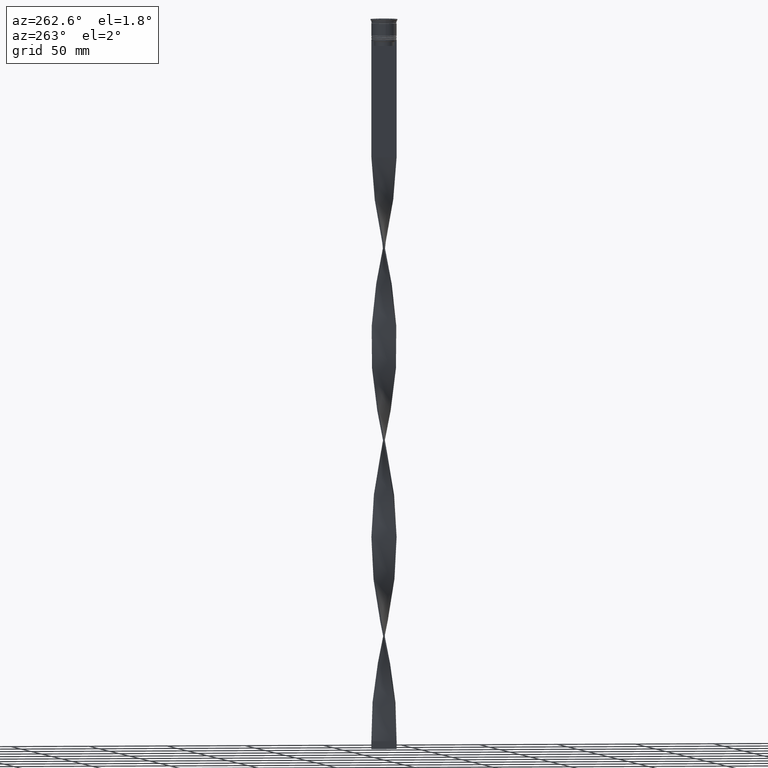
[diagram: clean part render]
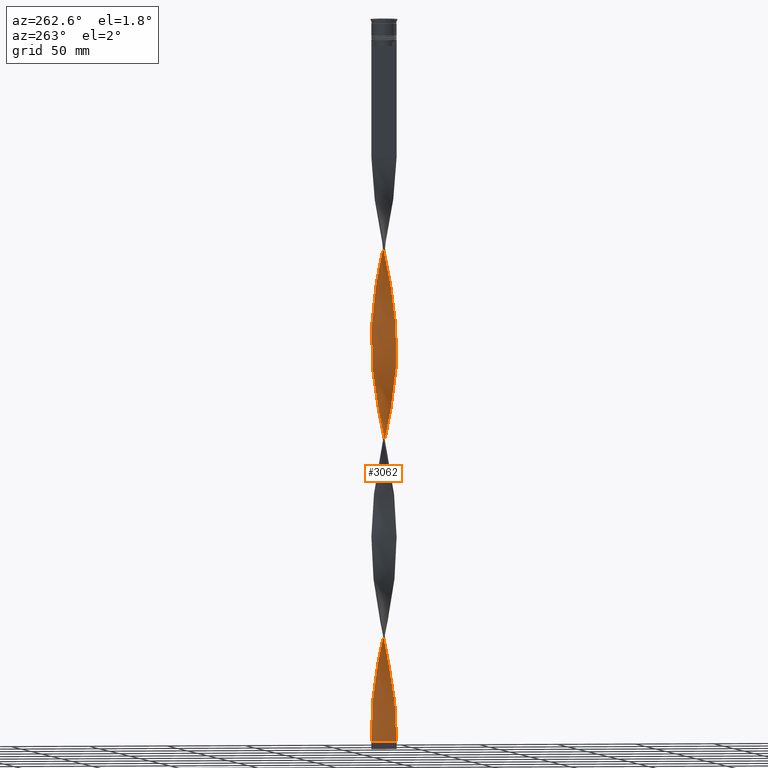
[diagram: same view with one face highlighted and labeled with its STEP entity id]
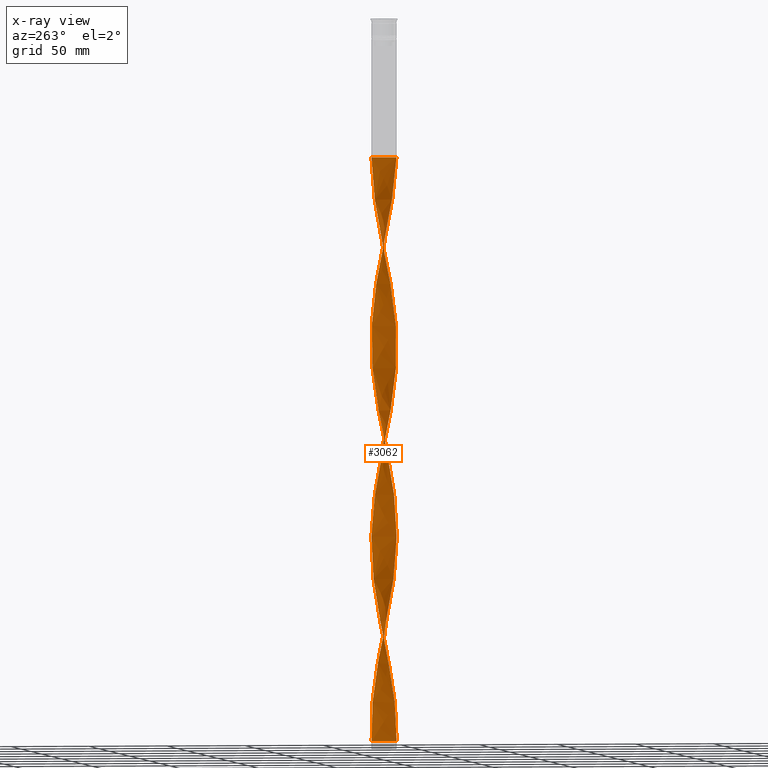
[diagram: x-ray of the same camera — body ghosted, the highlighted face saturated]
A machine part, auxiliary view. The second image highlights one B-rep face of the part: STEP entity #3062.
The next image is the same camera in x-ray: the body ghosted, the highlighted face saturated — about 0% of this face is hidden behind the body in this view.
In plain terms, the highlighted face is a freeform B-spline surface patch.
Its self-contained STEP definition (entity closure, byte-faithful):
#3 = CARTESIAN_POINT ( 'NONE',  ( -7.705527183036053884, -2.207906436308477716, -163.2753623188405641 ) ) ;
#7 = CARTESIAN_POINT ( 'NONE',  ( 5.106912555500779050, 6.202423566746448458, -182.0942028985507477 ) ) ;
#21 = CARTESIAN_POINT ( 'NONE',  ( -6.873049228353423246, 4.124462911050404301, -378.3478260869565020 ) ) ;
#25 = CARTESIAN_POINT ( 'NONE',  ( 4.660847909256209398, -6.521234297798382151, -238.5507246376811565 ) ) ;
#42 = CARTESIAN_POINT ( 'NONE',  ( -1.140765448138977733, 7.952940848717248379, -343.3985507246376869 ) ) ;
#48 = CARTESIAN_POINT ( 'NONE',  ( -3.244140533008806671, -7.350249393928927510, -316.5144927536231876 ) ) ;
#57 = CARTESIAN_POINT ( 'NONE',  ( 2.728603068017209310, 7.536890956966746380, -442.8695652173913118 ) ) ;
#62 = CARTESIAN_POINT ( 'NONE',  ( -4.134100453396769126, -6.889109332278574804, -440.1811594202897595 ) ) ;
#67 = CARTESIAN_POINT ( 'NONE',  ( -4.583881302556712001, 6.575563261354197664, -233.1739130434782510 ) ) ;
#74 = CARTESIAN_POINT ( 'NONE',  ( -3.729461898010222320, 7.095147211389622122, -356.8405797101449366 ) ) ;
#84 = CARTESIAN_POINT ( 'NONE',  ( -7.155170220385199009, 3.654333464282637500, -381.0362318840579974 ) ) ;
#92 = CARTESIAN_POINT ( 'NONE',  ( 4.214783263011652181, 6.840045028850328279, -187.4710144927535964 ) ) ;
#103 = CARTESIAN_POINT ( 'NONE',  ( 4.214783263011651293, 6.840045028850328279, -434.8043478260869961 ) ) ;
#108 = CARTESIAN_POINT ( 'NONE',  ( -6.187964285834318900, -5.095007163610166145, -426.7391304347826235 ) ) ;
#114 = CARTESIAN_POINT ( 'NONE',  ( 3.157528285648548927, -7.387870401962434386, -348.7753623188405641 ) ) ;
#128 = CARTESIAN_POINT ( 'NONE',  ( 8.015471360206651852, -0.04710492232209864683, -147.1449275362318758 ) ) ;
#133 = CARTESIAN_POINT ( 'NONE',  ( -2.122137340211641909, 7.749009424445339356, -219.7318840579710297 ) ) ;
#136 = CARTESIAN_POINT ( 'NONE',  ( -7.947228946841973674, 1.044773691512637548, -394.4782608695651902 ) ) ;
#137 = CARTESIAN_POINT ( 'NONE',  ( -0.5000000000000011102, -7.999999999999996447, -458.9999999999999432 ) ) ;
#146 = CARTESIAN_POINT ( 'NONE',  ( 4.583881302556714665, -6.575563261354194999, -109.5072463768115796 ) ) ;
#151 = EDGE_CURVE ( 'NONE', #2038, #2284, #602, .T. ) ;
#153 = FACE_OUTER_BOUND ( 'NONE', #892, .T. ) ;
#175 = CARTESIAN_POINT ( 'NONE',  ( 0.04721499136463855328, 8.034200936960292694, -208.9782608695651902 ) ) ;
#179 = CARTESIAN_POINT ( 'NONE',  ( 6.824099305140972405, -4.204957630413717062, -372.9710144927536248 ) ) ;
#183 = CARTESIAN_POINT ( 'NONE',  ( -5.839456248204605515, -5.518275516514856704, -429.4275362318840621 ) ) ;
#189 = CARTESIAN_POINT ( 'NONE',  ( -2.728603068017203537, 7.536890956966741939, -104.1304347826086882 ) ) ;
#197 = CARTESIAN_POINT ( 'NONE',  ( 5.903909729730560052, 5.449262689030147655, -176.7173913043478137 ) ) ;
#206 = CARTESIAN_POINT ( 'NONE',  ( -5.505411142615662001, 5.825843127888292727, -367.5942028985506909 ) ) ;
#215 = CARTESIAN_POINT ( 'NONE',  ( 2.213065603025613282, 7.723532520004568802, -198.2246376811594359 ) ) ;
#219 = CARTESIAN_POINT ( 'NONE',  ( 7.705527183036060102, -2.207906436308480824, -383.7246376811593791 ) ) ;
#237 = CARTESIAN_POINT ( 'NONE',  ( -5.106912555500783490, -6.202423566746444905, -305.7608695652173196 ) ) ;
#244 = CARTESIAN_POINT ( 'NONE',  ( 7.370647570865075160, 3.150167358427300890, -410.6086956521738216 ) ) ;
#248 = B_SPLINE_CURVE_WITH_KNOTS ( 'NONE', 3,
 ( #137, #1808, #4141, #505 ),
 .UNSPECIFIED., .F., .F.,
 ( 4, 4 ),
 ( 0.000000000000000000, 1.000000000000000000 ),
 .UNSPECIFIED. ) ;
#257 = CARTESIAN_POINT ( 'NONE',  ( 7.554502245351253364, -2.734978935174111836, -381.0362318840579974 ) ) ;
#261 = CARTESIAN_POINT ( 'NONE',  ( 4.660847909256209398, -6.521234297798382151, -238.5507246376811565 ) ) ;
#274 = CARTESIAN_POINT ( 'NONE',  ( -6.590928236321654587, -4.594592357818172879, -295.0072463768116791 ) ) ;
#278 = CARTESIAN_POINT ( 'NONE',  ( 2.728603068017201316, -7.536890956966742827, -227.7971014492753454 ) ) ;
#296 = CARTESIAN_POINT ( 'NONE',  ( 5.033662151716659316, -6.262017190429809865, -359.5289855072463752 ) ) ;
#304 = CARTESIAN_POINT ( 'NONE',  ( 8.015471360206644746, 0.04710492232209789049, -276.1884057971014386 ) ) ;
#309 = CARTESIAN_POINT ( 'NONE',  ( 2.639832812930094974, -7.568439913203886427, -98.75362318840578268 ) ) ;
#319 = CARTESIAN_POINT ( 'NONE',  ( -7.333114266084579391, 3.236577692648035853, -254.6811594202898448 ) ) ;
#323 = CARTESIAN_POINT ( 'NONE',  ( -7.730944694932261996, 2.117190148262233063, -141.7681159420289703 ) ) ;
#328 = CARTESIAN_POINT ( 'NONE',  ( 5.505411142615669107, 5.825843127888296280, -179.4057971014492807 ) ) ;
#334 = CARTESIAN_POINT ( 'NONE',  ( -1.584676165788138080, -7.857404243742519334, -206.2898550724637516 ) ) ;
#339 = CARTESIAN_POINT ( 'NONE',  ( -3.729461898010222320, 7.095147211389622122, -356.8405797101449366 ) ) ;
#344 = CARTESIAN_POINT ( 'NONE',  ( 2.122137340211641465, -7.749009424445339356, -96.06521739130434412 ) ) ;
#353 = CARTESIAN_POINT ( 'NONE',  ( 5.106912555500779050, 6.202423566746448458, -429.4275362318841189 ) ) ;
#359 = CARTESIAN_POINT ( 'NONE',  ( -6.590928236321647482, 4.594592357818171990, -375.6594202898551771 ) ) ;
#367 = CARTESIAN_POINT ( 'NONE',  ( -5.033662151716658428, 6.262017190429809865, -235.8623188405797464 ) ) ;
#380 = CARTESIAN_POINT ( 'NONE',  ( -2.728603068017203537, 7.536890956966741939, -351.4637681159420595 ) ) ;
#386 = CARTESIAN_POINT ( 'NONE',  ( -8.015471360206651852, 0.04710492232210135993, -270.8115942028985614 ) ) ;
#398 = CARTESIAN_POINT ( 'NONE',  ( -5.903909729730553835, 5.449262689030142326, -370.2826086956521863 ) ) ;
#404 = CARTESIAN_POINT ( 'NONE',  ( -0.5939902197518127647, -7.993570892838771869, -329.9565217391304373 ) ) ;
#419 = CARTESIAN_POINT ( 'NONE',  ( 1.140765448138978178, -7.952940848717247491, -219.7318840579710297 ) ) ;
#423 = CARTESIAN_POINT ( 'NONE',  ( -4.214783263011645076, 6.840045028850322950, -359.5289855072463752 ) ) ;
#432 = CARTESIAN_POINT ( 'NONE',  ( -7.730944694932271766, -2.117190148262229066, -281.5652173913043725 ) ) ;
#448 = CARTESIAN_POINT ( 'NONE',  ( 6.187964285834322453, -5.095007163610173251, -120.2608695652173907 ) ) ;
#450 = VERTEX_POINT ( 'NONE', #1368 ) ;
#454 = CARTESIAN_POINT ( 'NONE',  ( -6.247418983026107320, -5.021927523424158935, -297.6956521739130039 ) ) ;
#458 = CARTESIAN_POINT ( 'NONE',  ( -7.111726286817906306, -3.738176450121946548, -418.6739130434783078 ) ) ;
#470 = CARTESIAN_POINT ( 'NONE',  ( 1.584676165788138524, -7.857404243742526440, -93.37681159420290555 ) ) ;
#477 = CARTESIAN_POINT ( 'NONE',  ( 0.04721499136463856022, 8.034200936960294470, -456.3115942028985614 ) ) ;
#490 = CARTESIAN_POINT ( 'NONE',  ( -4.214783263011645964, 6.840045028850323838, -359.5289855072463752 ) ) ;
#492 = CARTESIAN_POINT ( 'NONE',  ( 7.875764468519596662, 1.588379043952501180, -155.2101449275362199 ) ) ;
#498 = CARTESIAN_POINT ( 'NONE',  ( 3.729461898010228538, 7.095147211389627451, -437.4927536231883778 ) ) ;
#504 = CARTESIAN_POINT ( 'NONE',  ( -7.705527183036053884, -2.207906436308477716, -410.6086956521738216 ) ) ;
#505 = CARTESIAN_POINT ( 'NONE',  ( -0.4999999999999991673, 8.000000000000003553, -458.9999999999999432 ) ) ;
#513 = CARTESIAN_POINT ( 'NONE',  ( 1.584676165788142521, 7.857404243742519334, -329.9565217391304373 ) ) ;
#520 = CARTESIAN_POINT ( 'NONE',  ( 7.370647570865075160, 3.150167358427300890, -163.2753623188405641 ) ) ;
#525 = CARTESIAN_POINT ( 'NONE',  ( 6.873049228353429463, 4.124462911050406078, -415.9855072463768124 ) ) ;
#536 = VERTEX_POINT ( 'NONE', #4087 ) ;
#541 = CARTESIAN_POINT ( 'NONE',  ( 4.134100453396771790, -6.889109332278581910, -106.8188405797101268 ) ) ;
#546 = CARTESIAN_POINT ( 'NONE',  ( 6.187964285834322453, -5.095007163610173251, -367.5942028985506909 ) ) ;
#552 = CARTESIAN_POINT ( 'NONE',  ( -1.676915525582293620, 7.838236684360903261, -98.75362318840578268 ) ) ;
#560 = CARTESIAN_POINT ( 'NONE',  ( -2.213065603025614170, -7.723532520004568802, -321.8913043478260647 ) ) ;
#565 = CARTESIAN_POINT ( 'NONE',  ( 5.033662151716659316, -6.262017190429809865, -359.5289855072463752 ) ) ;
#575 = CARTESIAN_POINT ( 'NONE',  ( -7.370647570865066278, 3.150167358427299558, -136.3913043478260931 ) ) ;
#584 = CARTESIAN_POINT ( 'NONE',  ( 6.536472323464036727, -4.671738810705485356, -370.2826086956521863 ) ) ;
#590 = CARTESIAN_POINT ( 'NONE',  ( -8.015471360206644746, -0.04710492232209712721, -152.5217391304347530 ) ) ;
#597 = CARTESIAN_POINT ( 'NONE',  ( 3.729461898010220100, -7.095147211389623898, -233.1739130434782510 ) ) ;
#602 =( BOUNDED_CURVE ( )  B_SPLINE_CURVE ( 2, ( #844, #889, #2217, #1839, #552, #3173, #189, #798, #3214, #2850, #2805, #2895, #1126, #2457, #2124, #3456, #3811, #2238, #575, #1579, #998, #771, #685, #3343, #1706, #1262, #2536, #1959, #1007, #2689, #4005, #3689, #2280, #699, #2027, #1594, #2930, #1941, #2601, #4268, #3623, #1270, #814, #1739, #334, #2446, #3771, #1957, #3114, #419, #3794, #2066, #1997, #3568, #597, #2955, #25, #1940, #1965, #3559, #856, #2174, #1475, #2812, #2107, #2151, #3480, #1219, #2118, #1788, #4107, #3767, #2417, #4051, #1336, #1467, #1491, #1117, #4254, #4031, #2737, #1704, #2760, #4100, #2373, #1685, #2220, #1924, #4236, #3552, #513, #2347, #1971, #950, #1231, #3163, #1263, #2841, #3847, #2655, #74, #490, #1607, #1789, #206, #4288, #3494, #3780, #3170, #1533, #819, #2801, #793, #1169, #136, #2867, #1190, #4162, #1807, #3452, #504, #4203, #1211, #458, #1465, #2520, #2162, #183, #1609, #3124, #839, #2479, #2594, #4140, #3935, #865, #3599, #1489, #1832 ),
 .UNSPECIFIED., .F., .T. ) 
 B_SPLINE_CURVE_WITH_KNOTS ( ( 3, 2, 2, 2, 2, 2, 2, 2, 2, 2, 2, 2, 2, 2, 2, 2, 2, 2, 2, 2, 2, 2, 2, 2, 2, 2, 2, 2, 2, 2, 2, 2, 2, 2, 2, 2, 2, 2, 2, 2, 2, 2, 2, 2, 2, 2, 2, 2, 2, 2, 2, 2, 2, 2, 2, 2, 2, 2, 2, 2, 2, 2, 2, 2, 2, 2, 2, 2, 2, 3 ),
 ( 0.000000000000000000, 0.01086956521739130405, 0.02173913043478260809, 0.03260869565217391214, 0.04347826086956521618, 0.05434782608695652023, 0.06521739130434782428, 0.07608695652173913526, 0.08695652173913043237, 0.09782608695652174335, 0.1086956521739130405, 0.1195652173913043653, 0.1304347826086956486, 0.1413043478260869457, 0.1521739130434782705, 0.1630434782608695676, 0.1739130434782608647, 0.1847826086956521896, 0.1956521739130434867, 0.2065217391304347838, 0.2173913043478260809, 0.2282608695652173780, 0.2391304347826087306, 0.2500000000000000000, 0.2608695652173912971, 0.2717391304347825942, 0.2826086956521738913, 0.2934782608695652439, 0.3043478260869565410, 0.3152173913043478382, 0.3260869565217391353, 0.3369565217391304324, 0.3478260869565217295, 0.3586956521739130266, 0.3695652173913043792, 0.3804347826086956208, 0.3913043478260869734, 0.4021739130434782705, 0.4130434782608695676, 0.4239130434782609202, 0.4347826086956521618, 0.4456521739130434590, 0.4565217391304347561, 0.4673913043478261087, 0.4782608695652174613, 0.4891304347826087029, 0.5000000000000000000, 0.5108695652173913526, 0.5217391304347825942, 0.5326086956521739468, 0.5434782608695651884, 0.5543478260869565410, 0.5652173913043477826, 0.5760869565217391353, 0.5869565217391304879, 0.5978260869565217295, 0.6086956521739130821, 0.6195652173913043237, 0.6304347826086956763, 0.6413043478260869179, 0.6521739130434782705, 0.6630434782608695121, 0.6739130434782608647, 0.6847826086956522174, 0.6956521739130434590, 0.7065217391304349226, 0.7173913043478260532, 0.7282608695652174058, 0.7391304347826087584, 0.7500000000000000000 ),
 .UNSPECIFIED. ) 
 CURVE ( )  GEOMETRIC_REPRESENTATION_ITEM ( )  RATIONAL_B_SPLINE_CURVE ( ( 1.000000000000000000, 0.9976687691905391508, 1.000000000000000000, 0.9976687691905391508, 1.000000000000000000, 0.9976687691905391508, 1.000000000000000000, 0.9976687691905391508, 1.000000000000000000, 0.9976687691905391508, 1.000000000000000000, 0.9976687691905391508, 1.000000000000000000, 0.9976687691905391508, 1.000000000000000000, 0.9976687691905391508, 1.000000000000000000, 0.9976687691905391508, 1.000000000000000000, 0.9976687691905391508, 1.000000000000000000, 0.9976687691905391508, 1.000000000000000000, 0.9976687691905391508, 1.000000000000000000, 0.9976687691905391508, 1.000000000000000000, 0.9976687691905391508, 1.000000000000000000, 0.9976687691905391508, 1.000000000000000000, 0.9976687691905391508, 1.000000000000000000, 0.9976687691905391508, 1.000000000000000000, 0.9976687691905391508, 1.000000000000000000, 0.9976687691905391508, 1.000000000000000000, 0.9976687691905391508, 1.000000000000000000, 0.9976687691905391508, 1.000000000000000000, 0.9976687691905391508, 1.000000000000000000, 0.9976687691905391508, 1.000000000000000000, 0.9976687691905391508, 1.000000000000000000, 0.9976687691905391508, 1.000000000000000000, 0.9976687691905391508, 1.000000000000000000, 0.9976687691905391508, 1.000000000000000000, 0.9976687691905391508, 1.000000000000000000, 0.9976687691905391508, 1.000000000000000000, 0.9976687691905391508, 1.000000000000000000, 0.9976687691905391508, 1.000000000000000000, 0.9976687691905391508, 1.000000000000000000, 0.9976687691905391508, 1.000000000000000000, 0.9976687691905391508, 1.000000000000000000, 0.9976687691905391508, 1.000000000000000000, 0.9976687691905391508, 1.000000000000000000, 0.9976687691905391508, 1.000000000000000000, 0.9976687691905391508, 1.000000000000000000, 0.9976687691905391508, 1.000000000000000000, 0.9976687691905391508, 1.000000000000000000, 0.9976687691905391508, 1.000000000000000000, 0.9976687691905391508, 1.000000000000000000, 0.9976687691905391508, 1.000000000000000000, 0.9976687691905391508, 1.000000000000000000, 0.9976687691905391508, 1.000000000000000000, 0.9976687691905391508, 1.000000000000000000, 0.9976687691905391508, 1.000000000000000000, 0.9976687691905391508, 1.000000000000000000, 0.9976687691905391508, 1.000000000000000000, 0.9976687691905391508, 1.000000000000000000, 0.9976687691905391508, 1.000000000000000000, 0.9976687691905391508, 1.000000000000000000, 0.9976687691905391508, 1.000000000000000000, 0.9976687691905391508, 1.000000000000000000, 0.9976687691905391508, 1.000000000000000000, 0.9976687691905391508, 1.000000000000000000, 0.9976687691905391508, 1.000000000000000000, 0.9976687691905391508, 1.000000000000000000, 0.9976687691905391508, 1.000000000000000000, 0.9976687691905391508, 1.000000000000000000, 0.9976687691905391508, 1.000000000000000000, 0.9976687691905391508, 1.000000000000000000, 0.9976687691905391508, 1.000000000000000000, 0.9976687691905391508, 1.000000000000000000, 0.9976687691905391508, 1.000000000000000000, 0.9976687691905391508, 1.000000000000000000, 0.9976687691905391508, 1.000000000000000000, 0.9976687691905391508, 1.000000000000000000, 0.9976687691905391508, 1.000000000000000000 ) ) 
 REPRESENTATION_ITEM ( '' )  );
#607 = CARTESIAN_POINT ( 'NONE',  ( 7.586124921344944205, 2.646001252571962059, -407.9202898550724399 ) ) ;
#612 = CARTESIAN_POINT ( 'NONE',  ( -1.584676165788138080, -7.857404243742519334, -206.2898550724637516 ) ) ;
#617 = CARTESIAN_POINT ( 'NONE',  ( 4.660847909256216504, 6.521234297798387480, -184.7826086956521578 ) ) ;
#626 = CARTESIAN_POINT ( 'NONE',  ( -4.214783263011652181, -6.840045028850327391, -311.1376811594204241 ) ) ;
#631 = CARTESIAN_POINT ( 'NONE',  ( -4.660847909256209398, 6.521234297798383928, -114.8840579710144851 ) ) ;
#635 = CARTESIAN_POINT ( 'NONE',  ( 7.370647570865075160, 3.150167358427300890, -163.2753623188405641 ) ) ;
#648 = CARTESIAN_POINT ( 'NONE',  ( 8.015471360206651852, -0.04710492232209864683, -394.4782608695651902 ) ) ;
#655 = CARTESIAN_POINT ( 'NONE',  ( 7.875764468519586003, -1.588379043952506064, -268.1231884057971797 ) ) ;
#669 = CARTESIAN_POINT ( 'NONE',  ( 3.729461898010228538, 7.095147211389627451, -437.4927536231883778 ) ) ;
#674 = CARTESIAN_POINT ( 'NONE',  ( -4.214783263011645076, 6.840045028850322950, -112.1956521739130466 ) ) ;
#678 = CARTESIAN_POINT ( 'NONE',  ( 7.856552120720868615, -1.680833937442850923, -139.0797101449275317 ) ) ;
#685 = CARTESIAN_POINT ( 'NONE',  ( -7.947228946841973674, 1.044773691512637548, -147.1449275362318758 ) ) ;
#695 = CARTESIAN_POINT ( 'NONE',  ( -7.370647570865066278, 3.150167358427299558, -383.7246376811593791 ) ) ;
#699 = CARTESIAN_POINT ( 'NONE',  ( -6.536472323464030509, -4.671738810705480915, -176.7173913043478137 ) ) ;
#702 = CARTESIAN_POINT ( 'NONE',  ( 0.5939902197518082128, 7.993570892838771869, -206.2898550724637516 ) ) ;
#718 = CARTESIAN_POINT ( 'NONE',  ( -4.660847909256209398, 6.521234297798383928, -362.2173913043478137 ) ) ;
#725 = CARTESIAN_POINT ( 'NONE',  ( -7.875764468519596662, -1.588379043952496961, -278.8768115942028771 ) ) ;
#737 = CARTESIAN_POINT ( 'NONE',  ( -3.244140533008798677, 7.350249393928923958, -354.1521739130434980 ) ) ;
#744 = CARTESIAN_POINT ( 'NONE',  ( -4.660847909256217392, -6.521234297798386592, -308.4492753623188150 ) ) ;
#756 = CARTESIAN_POINT ( 'NONE',  ( 5.436559199960631972, 5.890146353472327512, -308.4492753623188150 ) ) ;
#762 = CARTESIAN_POINT ( 'NONE',  ( -4.214783263011653069, -6.840045028850328279, -311.1376811594203673 ) ) ;
#771 = CARTESIAN_POINT ( 'NONE',  ( -7.875764468519589556, 1.588379043952501846, -144.4565217391304657 ) ) ;
#781 = CARTESIAN_POINT ( 'NONE',  ( -2.213065603025609729, 7.723532520004563473, -348.7753623188405072 ) ) ;
#789 = CARTESIAN_POINT ( 'NONE',  ( -7.111726286817909859, 3.738176450121951433, -251.9927536231884631 ) ) ;
#793 = CARTESIAN_POINT ( 'NONE',  ( -7.730944694932261996, 2.117190148262233063, -389.1014492753622562 ) ) ;
#798 = CARTESIAN_POINT ( 'NONE',  ( -3.244140533008799121, 7.350249393928923958, -106.8188405797101410 ) ) ;
#810 = CARTESIAN_POINT ( 'NONE',  ( -3.157528285648548927, 7.387870401962434386, -225.1086956521739353 ) ) ;
#814 = CARTESIAN_POINT ( 'NONE',  ( -2.639832812930093198, -7.568439913203878433, -200.9130434782608745 ) ) ;
#819 = CARTESIAN_POINT ( 'NONE',  ( -7.370647570865066278, 3.150167358427299558, -383.7246376811593791 ) ) ;
#831 = CARTESIAN_POINT ( 'NONE',  ( 7.730944694932269989, 2.117190148262231286, -157.8985507246376585 ) ) ;
#836 = CARTESIAN_POINT ( 'NONE',  ( -2.728603068017203537, 7.536890956966741939, -104.1304347826086882 ) ) ;
#839 = CARTESIAN_POINT ( 'NONE',  ( -4.583881302556713777, -6.575563261354187006, -437.4927536231883778 ) ) ;
#844 = CARTESIAN_POINT ( 'NONE',  ( 0.5000000000000001110, 7.999999999999996447, -88.00000000000000000 ) ) ;
#853 = CARTESIAN_POINT ( 'NONE',  ( -5.839456248204609956, 5.518275516514862034, -241.2391304347826519 ) ) ;
#856 = CARTESIAN_POINT ( 'NONE',  ( 6.247418983026099326, -5.021927523424157158, -249.3043478260869392 ) ) ;
#860 = CARTESIAN_POINT ( 'NONE',  ( 7.554502245351252476, -2.734978935174111836, -381.0362318840579974 ) ) ;
#865 = CARTESIAN_POINT ( 'NONE',  ( -2.122137340211641909, -7.749009424445332250, -450.9347826086956275 ) ) ;
#881 = CARTESIAN_POINT ( 'NONE',  ( 7.111726286817909859, -3.738176450121951433, -128.3260869565217206 ) ) ;
#889 = CARTESIAN_POINT ( 'NONE',  ( -0.04721499136463552099, 8.034200936960287365, -90.68840579710145278 ) ) ;
#892 = EDGE_LOOP ( 'NONE', ( #3113, #1674, #3391, #3735 ) ) ;
#896 = CARTESIAN_POINT ( 'NONE',  ( 0.5939902197518082128, 7.993570892838771869, -206.2898550724637516 ) ) ;
#901 = CARTESIAN_POINT ( 'NONE',  ( 5.436559199960634636, -5.890146353472335505, -362.2173913043478137 ) ) ;
#915 = CARTESIAN_POINT ( 'NONE',  ( 3.645814369522659693, -7.138489867120506815, -351.4637681159420595 ) ) ;
#919 = CARTESIAN_POINT ( 'NONE',  ( -3.729461898010222320, 7.095147211389622122, -109.5072463768115796 ) ) ;
#926 = CARTESIAN_POINT ( 'NONE',  ( 6.247418983026106432, 5.021927523424159823, -174.0289855072463752 ) ) ;
#939 = CARTESIAN_POINT ( 'NONE',  ( 7.730944694932269989, 2.117190148262231286, -405.2318840579709445 ) ) ;
#946 = CARTESIAN_POINT ( 'NONE',  ( -7.856552120720862398, -1.680833937442846038, -160.5869565217391823 ) ) ;
#950 = CARTESIAN_POINT ( 'NONE',  ( -0.04721499136463552099, 8.034200936960287365, -338.0217391304347530 ) ) ;
#952 = CARTESIAN_POINT ( 'NONE',  ( 3.645814369522659693, -7.138489867120506815, -104.1304347826086882 ) ) ;
#960 = CARTESIAN_POINT ( 'NONE',  ( -7.875764468519596662, -1.588379043952496961, -278.8768115942028203 ) ) ;
#966 = CARTESIAN_POINT ( 'NONE',  ( 7.370647570865066278, -3.150167358427300446, -260.0579710144927503 ) ) ;
#971 = CARTESIAN_POINT ( 'NONE',  ( 6.873049228353429463, 4.124462911050406078, -168.6521739130434696 ) ) ;
#982 = CARTESIAN_POINT ( 'NONE',  ( 1.047214991364636472, -7.965799063039713523, -338.0217391304347530 ) ) ;
#986 = CARTESIAN_POINT ( 'NONE',  ( -5.903909729730553835, 5.449262689030142326, -122.9492753623188577 ) ) ;
#998 = CARTESIAN_POINT ( 'NONE',  ( -7.730944694932261996, 2.117190148262233063, -141.7681159420289703 ) ) ;
#1007 = CARTESIAN_POINT ( 'NONE',  ( -7.705527183036053884, -2.207906436308477716, -163.2753623188405641 ) ) ;
#1009 = CARTESIAN_POINT ( 'NONE',  ( 1.676915525582291400, -7.838236684360903261, -222.4202898550724399 ) ) ;
#1015 = CARTESIAN_POINT ( 'NONE',  ( 1.584676165788138524, -7.857404243742526440, -93.37681159420290555 ) ) ;
#1024 = CARTESIAN_POINT ( 'NONE',  ( 5.505411142615669107, 5.825843127888296280, -426.7391304347826235 ) ) ;
#1031 = CARTESIAN_POINT ( 'NONE',  ( -5.106912555500773720, 6.202423566746443129, -364.9057971014492523 ) ) ;
#1037 = CARTESIAN_POINT ( 'NONE',  ( 2.639832812930094974, -7.568439913203886427, -346.0869565217391255 ) ) ;
#1047 = CARTESIAN_POINT ( 'NONE',  ( -4.583881302556713777, -6.575563261354187006, -437.4927536231883778 ) ) ;
#1053 = CARTESIAN_POINT ( 'NONE',  ( -7.947228946841980779, -1.044773691512637548, -276.1884057971014386 ) ) ;
#1061 = CARTESIAN_POINT ( 'NONE',  ( 1.140765448138981286, 7.952940848717255484, -450.9347826086956275 ) ) ;
#1067 =( BOUNDED_SURFACE ( )  B_SPLINE_SURFACE ( 1, 2, ( 
 ( #3543, #1876, #2824, #4159, #1165, #3826, #836, #1310, #919, #674, #631, #3912, #4265, #986, #1635, #2644, #2252, #2989, #1990, #3981, #323, #3580, #2575, #1654, #590, #2597, #1591, #946, #3, #2008, #1246, #3667, #1962, #1917, #1265, #2974, #2926, #4313, #2343, #4244, #3938, #1326, #2277, #3601, #612, #1937, #2908, #3246, #4001, #3316, #1009, #3959, #278, #3269, #1611, #2319, #261, #3332, #2951, #4292, #1292, #2662, #3643, #2623, #966, #1573, #2298, #655, #3620, #3292, #304, #2049, #2381, #2772, #3746, #3095, #4021, #2424, #2109, #1391, #1668, #1068, #756, #3030, #4108, #2442, #1111, #3728, #2088, #3395, #3373, #4041, #1352, #2724, #3416, #42, #3768, #781, #380, #737, #339, #423, #718, #1031, #3007, #398, #1715, #359, #21, #84, #695, #4064, #1735, #3069, #3050, #2685, #3704, #1412, #1757, #2362, #3684, #2024, #3352, #1693, #2749, #1370, #108, #1435, #4088, #2705, #1047, #62, #2405, #2069, #1092, #3464, #2817, #3539, #2555 ),
 ( #1800, #3513, #470, #1849, #4218, #1780, #3135, #541, #146, #1479, #2492, #4155, #448, #3116, #1546, #881, #2878, #1504, #2154, #1160, #3819, #4195, #128, #3889, #1455, #492, #831, #1871, #520, #1135, #2792, #3866, #3200, #197, #2468, #3484, #3181, #1821, #3158, #1224, #2532, #215, #4130, #1201, #896, #175, #3798, #4175, #2205, #2838, #3441, #810, #2132, #2514, #1181, #2179, #3842, #853, #1524, #2858, #3976, #1913, #319, #2657, #2272, #2619, #1321, #2313, #2591, #2903, #3996, #960, #3931, #2248, #1649, #1954, #2571, #274, #2292, #3615, #3596, #237, #1260, #626, #2638, #2226, #3557, #560, #2984, #1889, #3264, #1570, #4328, #982, #3953, #3285, #3222, #2970, #915, #4240, #1242, #296, #3909, #3576, #1285, #584, #3242, #1628, #4308, #257, #1306, #1588, #2923, #3637, #648, #1981, #4262, #3311, #939, #607, #1931, #1604, #2945, #4283, #2004, #2019, #1024, #353, #1088, #103, #669, #3090, #57, #1663, #3679, #1061, #2356, #3723, #1753 ) ),
 .UNSPECIFIED., .F., .F., .F. ) 
 B_SPLINE_SURFACE_WITH_KNOTS ( ( 2, 2 ),
 ( 3, 2, 2, 2, 2, 2, 2, 2, 2, 2, 2, 2, 2, 2, 2, 2, 2, 2, 2, 2, 2, 2, 2, 2, 2, 2, 2, 2, 2, 2, 2, 2, 2, 2, 2, 2, 2, 2, 2, 2, 2, 2, 2, 2, 2, 2, 2, 2, 2, 2, 2, 2, 2, 2, 2, 2, 2, 2, 2, 2, 2, 2, 2, 2, 2, 2, 2, 2, 2, 3 ),
 ( 0.000000000000000000, 1.000000000000000000 ),
 ( 0.000000000000000000, 0.01086956521739130405, 0.02173913043478260809, 0.03260869565217391214, 0.04347826086956521618, 0.05434782608695652023, 0.06521739130434782428, 0.07608695652173913526, 0.08695652173913043237, 0.09782608695652174335, 0.1086956521739130405, 0.1195652173913043514, 0.1304347826086956486, 0.1413043478260869457, 0.1521739130434782705, 0.1630434782608695676, 0.1739130434782608647, 0.1847826086956521618, 0.1956521739130434867, 0.2065217391304347838, 0.2173913043478260809, 0.2282608695652173780, 0.2391304347826087029, 0.2500000000000000000, 0.2608695652173912971, 0.2717391304347825942, 0.2826086956521738913, 0.2934782608695652439, 0.3043478260869565410, 0.3152173913043478382, 0.3260869565217391353, 0.3369565217391304324, 0.3478260869565217295, 0.3586956521739130266, 0.3695652173913043237, 0.3804347826086956763, 0.3913043478260869734, 0.4021739130434782705, 0.4130434782608695676, 0.4239130434782608647, 0.4347826086956521618, 0.4456521739130434590, 0.4565217391304347561, 0.4673913043478261087, 0.4782608695652174058, 0.4891304347826087029, 0.5000000000000000000, 0.5108695652173913526, 0.5217391304347825942, 0.5326086956521739468, 0.5434782608695651884, 0.5543478260869565410, 0.5652173913043477826, 0.5760869565217391353, 0.5869565217391304879, 0.5978260869565217295, 0.6086956521739130821, 0.6195652173913043237, 0.6304347826086956763, 0.6413043478260869179, 0.6521739130434782705, 0.6630434782608695121, 0.6739130434782608647, 0.6847826086956522174, 0.6956521739130434590, 0.7065217391304348116, 0.7173913043478260532, 0.7282608695652174058, 0.7391304347826086474, 0.7500000000000000000 ),
 .UNSPECIFIED. ) 
 GEOMETRIC_REPRESENTATION_ITEM ( )  RATIONAL_B_SPLINE_SURFACE ( (
 ( 1.000000000000000000, 0.9976687691905391508, 1.000000000000000000, 0.9976687691905391508, 1.000000000000000000, 0.9976687691905391508, 1.000000000000000000, 0.9976687691905391508, 1.000000000000000000, 0.9976687691905391508, 1.000000000000000000, 0.9976687691905391508, 1.000000000000000000, 0.9976687691905391508, 1.000000000000000000, 0.9976687691905391508, 1.000000000000000000, 0.9976687691905391508, 1.000000000000000000, 0.9976687691905391508, 1.000000000000000000, 0.9976687691905391508, 1.000000000000000000, 0.9976687691905391508, 1.000000000000000000, 0.9976687691905391508, 1.000000000000000000, 0.9976687691905391508, 1.000000000000000000, 0.9976687691905391508, 1.000000000000000000, 0.9976687691905391508, 1.000000000000000000, 0.9976687691905391508, 1.000000000000000000, 0.9976687691905391508, 1.000000000000000000, 0.9976687691905391508, 1.000000000000000000, 0.9976687691905391508, 1.000000000000000000, 0.9976687691905391508, 1.000000000000000000, 0.9976687691905391508, 1.000000000000000000, 0.9976687691905391508, 1.000000000000000000, 0.9976687691905391508, 1.000000000000000000, 0.9976687691905391508, 1.000000000000000000, 0.9976687691905391508, 1.000000000000000000, 0.9976687691905391508, 1.000000000000000000, 0.9976687691905391508, 1.000000000000000000, 0.9976687691905391508, 1.000000000000000000, 0.9976687691905391508, 1.000000000000000000, 0.9976687691905391508, 1.000000000000000000, 0.9976687691905391508, 1.000000000000000000, 0.9976687691905391508, 1.000000000000000000, 0.9976687691905391508, 1.000000000000000000, 0.9976687691905391508, 1.000000000000000000, 0.9976687691905391508, 1.000000000000000000, 0.9976687691905391508, 1.000000000000000000, 0.9976687691905391508, 1.000000000000000000, 0.9976687691905391508, 1.000000000000000000, 0.9976687691905391508, 1.000000000000000000, 0.9976687691905391508, 1.000000000000000000, 0.9976687691905391508, 1.000000000000000000, 0.9976687691905391508, 1.000000000000000000, 0.9976687691905391508, 1.000000000000000000, 0.9976687691905391508, 1.000000000000000000, 0.9976687691905391508, 1.000000000000000000, 0.9976687691905391508, 1.000000000000000000, 0.9976687691905391508, 1.000000000000000000, 0.9976687691905391508, 1.000000000000000000, 0.9976687691905391508, 1.000000000000000000, 0.9976687691905391508, 1.000000000000000000, 0.9976687691905391508, 1.000000000000000000, 0.9976687691905391508, 1.000000000000000000, 0.9976687691905391508, 1.000000000000000000, 0.9976687691905391508, 1.000000000000000000, 0.9976687691905391508, 1.000000000000000000, 0.9976687691905391508, 1.000000000000000000, 0.9976687691905391508, 1.000000000000000000, 0.9976687691905391508, 1.000000000000000000, 0.9976687691905391508, 1.000000000000000000, 0.9976687691905391508, 1.000000000000000000, 0.9976687691905391508, 1.000000000000000000, 0.9976687691905391508, 1.000000000000000000, 0.9976687691905391508, 1.000000000000000000, 0.9976687691905391508, 1.000000000000000000, 0.9976687691905391508, 1.000000000000000000, 0.9976687691905391508, 1.000000000000000000, 0.9976687691905391508, 1.000000000000000000, 0.9976687691905391508, 1.000000000000000000),
 ( 1.000000000000000000, 0.9976687691905391508, 1.000000000000000000, 0.9976687691905391508, 1.000000000000000000, 0.9976687691905391508, 1.000000000000000000, 0.9976687691905391508, 1.000000000000000000, 0.9976687691905391508, 1.000000000000000000, 0.9976687691905391508, 1.000000000000000000, 0.9976687691905391508, 1.000000000000000000, 0.9976687691905391508, 1.000000000000000000, 0.9976687691905391508, 1.000000000000000000, 0.9976687691905391508, 1.000000000000000000, 0.9976687691905391508, 1.000000000000000000, 0.9976687691905391508, 1.000000000000000000, 0.9976687691905391508, 1.000000000000000000, 0.9976687691905391508, 1.000000000000000000, 0.9976687691905391508, 1.000000000000000000, 0.9976687691905391508, 1.000000000000000000, 0.9976687691905391508, 1.000000000000000000, 0.9976687691905391508, 1.000000000000000000, 0.9976687691905391508, 1.000000000000000000, 0.9976687691905391508, 1.000000000000000000, 0.9976687691905391508, 1.000000000000000000, 0.9976687691905391508, 1.000000000000000000, 0.9976687691905391508, 1.000000000000000000, 0.9976687691905391508, 1.000000000000000000, 0.9976687691905391508, 1.000000000000000000, 0.9976687691905391508, 1.000000000000000000, 0.9976687691905391508, 1.000000000000000000, 0.9976687691905391508, 1.000000000000000000, 0.9976687691905391508, 1.000000000000000000, 0.9976687691905391508, 1.000000000000000000, 0.9976687691905391508, 1.000000000000000000, 0.9976687691905391508, 1.000000000000000000, 0.9976687691905391508, 1.000000000000000000, 0.9976687691905391508, 1.000000000000000000, 0.9976687691905391508, 1.000000000000000000, 0.9976687691905391508, 1.000000000000000000, 0.9976687691905391508, 1.000000000000000000, 0.9976687691905391508, 1.000000000000000000, 0.9976687691905391508, 1.000000000000000000, 0.9976687691905391508, 1.000000000000000000, 0.9976687691905391508, 1.000000000000000000, 0.9976687691905391508, 1.000000000000000000, 0.9976687691905391508, 1.000000000000000000, 0.9976687691905391508, 1.000000000000000000, 0.9976687691905391508, 1.000000000000000000, 0.9976687691905391508, 1.000000000000000000, 0.9976687691905391508, 1.000000000000000000, 0.9976687691905391508, 1.000000000000000000, 0.9976687691905391508, 1.000000000000000000, 0.9976687691905391508, 1.000000000000000000, 0.9976687691905391508, 1.000000000000000000, 0.9976687691905391508, 1.000000000000000000, 0.9976687691905391508, 1.000000000000000000, 0.9976687691905391508, 1.000000000000000000, 0.9976687691905391508, 1.000000000000000000, 0.9976687691905391508, 1.000000000000000000, 0.9976687691905391508, 1.000000000000000000, 0.9976687691905391508, 1.000000000000000000, 0.9976687691905391508, 1.000000000000000000, 0.9976687691905391508, 1.000000000000000000, 0.9976687691905391508, 1.000000000000000000, 0.9976687691905391508, 1.000000000000000000, 0.9976687691905391508, 1.000000000000000000, 0.9976687691905391508, 1.000000000000000000, 0.9976687691905391508, 1.000000000000000000, 0.9976687691905391508, 1.000000000000000000, 0.9976687691905391508, 1.000000000000000000, 0.9976687691905391508, 1.000000000000000000, 0.9976687691905391508, 1.000000000000000000) ) ) 
 REPRESENTATION_ITEM ( '' )  SURFACE ( )  );
#1068 = CARTESIAN_POINT ( 'NONE',  ( 5.839456248204608180, 5.518275516514852264, -305.7608695652173196 ) ) ;
#1076 = CARTESIAN_POINT ( 'NONE',  ( -8.018693425164370225, -0.5011683390727715848, -273.4999999999999432 ) ) ;
#1084 = EDGE_CURVE ( 'NONE', #536, #2038, #1317, .T. ) ;
#1088 = CARTESIAN_POINT ( 'NONE',  ( 4.660847909256216504, 6.521234297798387480, -432.1159420289855007 ) ) ;
#1092 = CARTESIAN_POINT ( 'NONE',  ( -2.639832812930093198, -7.568439913203878433, -448.2463768115941889 ) ) ;
#1098 = CARTESIAN_POINT ( 'NONE',  ( -5.839456248204609068, 5.518275516514862922, -241.2391304347826235 ) ) ;
#1111 = CARTESIAN_POINT ( 'NONE',  ( 3.645814369522660137, 7.138489867120498822, -319.2028985507245693 ) ) ;
#1117 = CARTESIAN_POINT ( 'NONE',  ( 7.111726286817906306, 3.738176450121945660, -295.0072463768116222 ) ) ;
#1119 = CARTESIAN_POINT ( 'NONE',  ( -7.856552120720868615, 1.680833937442850035, -262.7463768115941889 ) ) ;
#1126 = CARTESIAN_POINT ( 'NONE',  ( -5.505411142615662001, 5.825843127888292727, -120.2608695652173907 ) ) ;
#1135 = CARTESIAN_POINT ( 'NONE',  ( 7.155170220385206115, 3.654333464282639277, -165.9637681159420595 ) ) ;
#1143 = CARTESIAN_POINT ( 'NONE',  ( 1.676915525582295619, 7.838236684360910367, -448.2463768115941889 ) ) ;
#1160 = CARTESIAN_POINT ( 'NONE',  ( 7.856552120720867727, -1.680833937442850701, -139.0797101449275317 ) ) ;
#1165 = CARTESIAN_POINT ( 'NONE',  ( -1.676915525582293620, 7.838236684360903261, -98.75362318840578268 ) ) ;
#1169 = CARTESIAN_POINT ( 'NONE',  ( -7.875764468519589556, 1.588379043952501846, -391.7898550724637516 ) ) ;
#1181 = CARTESIAN_POINT ( 'NONE',  ( -4.583881302556712001, 6.575563261354197664, -233.1739130434782510 ) ) ;
#1190 = CARTESIAN_POINT ( 'NONE',  ( -8.015471360206644746, -0.04710492232209712721, -399.8550724637680673 ) ) ;
#1201 = CARTESIAN_POINT ( 'NONE',  ( 1.140765448138981286, 7.952940848717255484, -203.6014492753623415 ) ) ;
#1206 = CARTESIAN_POINT ( 'NONE',  ( 6.247418983026106432, 5.021927523424159823, -421.3623188405797464 ) ) ;
#1211 = CARTESIAN_POINT ( 'NONE',  ( -7.333114266084574950, -3.236577692648027416, -415.9855072463768124 ) ) ;
#1219 = CARTESIAN_POINT ( 'NONE',  ( 7.875764468519586003, -1.588379043952506064, -268.1231884057971229 ) ) ;
#1224 = CARTESIAN_POINT ( 'NONE',  ( 3.244140533008802674, 7.350249393928931063, -192.8478260869565020 ) ) ;
#1229 = CARTESIAN_POINT ( 'NONE',  ( 4.660847909256216504, 6.521234297798387480, -432.1159420289855007 ) ) ;
#1231 = CARTESIAN_POINT ( 'NONE',  ( -0.5939902197518068805, 7.993570892838764763, -340.7101449275362484 ) ) ;
#1242 = CARTESIAN_POINT ( 'NONE',  ( 4.583881302556714665, -6.575563261354194999, -356.8405797101449366 ) ) ;
#1246 = CARTESIAN_POINT ( 'NONE',  ( -7.333114266084574950, -3.236577692648027416, -168.6521739130434696 ) ) ;
#1260 = CARTESIAN_POINT ( 'NONE',  ( -4.660847909256217392, -6.521234297798386592, -308.4492753623188150 ) ) ;
#1262 = CARTESIAN_POINT ( 'NONE',  ( -8.012249295248929926, -0.5953781837169674906, -155.2101449275362199 ) ) ;
#1263 = CARTESIAN_POINT ( 'NONE',  ( -1.676915525582293620, 7.838236684360903261, -346.0869565217391255 ) ) ;
#1265 = CARTESIAN_POINT ( 'NONE',  ( -6.187964285834318900, -5.095007163610166145, -179.4057971014492807 ) ) ;
#1270 = CARTESIAN_POINT ( 'NONE',  ( -3.157528285648548483, -7.387870401962426392, -198.2246376811594359 ) ) ;
#1285 = CARTESIAN_POINT ( 'NONE',  ( 6.187964285834322453, -5.095007163610173251, -367.5942028985506909 ) ) ;
#1292 = CARTESIAN_POINT ( 'NONE',  ( 6.247418983026099326, -5.021927523424157158, -249.3043478260869392 ) ) ;
#1298 = CARTESIAN_POINT ( 'NONE',  ( 7.730944694932269989, 2.117190148262231286, -157.8985507246376585 ) ) ;
#1306 = CARTESIAN_POINT ( 'NONE',  ( 7.705527183036060102, -2.207906436308480824, -383.7246376811593791 ) ) ;
#1310 = CARTESIAN_POINT ( 'NONE',  ( -3.244140533008798677, 7.350249393928923958, -106.8188405797101268 ) ) ;
#1317 = LINE ( 'NONE', #4011, #2875 ) ;
#1321 = CARTESIAN_POINT ( 'NONE',  ( -7.934400707984902823, 1.138106060579908485, -265.4347826086956275 ) ) ;
#1326 = CARTESIAN_POINT ( 'NONE',  ( -3.157528285648548483, -7.387870401962426392, -198.2246376811594359 ) ) ;
#1336 = CARTESIAN_POINT ( 'NONE',  ( 7.705527183036053884, 2.207906436308476827, -286.9420289855072497 ) ) ;
#1352 = CARTESIAN_POINT ( 'NONE',  ( 0.5000000000000001110, 7.999999999999996447, -335.3333333333333144 ) ) ;
#1358 = CARTESIAN_POINT ( 'NONE',  ( 5.436559199960634636, -5.890146353472335505, -114.8840579710144851 ) ) ;
#1368 = CARTESIAN_POINT ( 'NONE',  ( -0.4999999999999991673, 8.000000000000003553, -458.9999999999999432 ) ) ;
#1370 = CARTESIAN_POINT ( 'NONE',  ( -6.536472323464030509, -4.671738810705480915, -424.0507246376811281 ) ) ;
#1376 = CARTESIAN_POINT ( 'NONE',  ( 4.583881302556714665, -6.575563261354194999, -356.8405797101449366 ) ) ;
#1391 = CARTESIAN_POINT ( 'NONE',  ( 6.536472323464030509, 4.671738810705480027, -300.3840579710144993 ) ) ;
#1396 = CARTESIAN_POINT ( 'NONE',  ( 1.676915525582295619, 7.838236684360910367, -200.9130434782608745 ) ) ;
#1412 = CARTESIAN_POINT ( 'NONE',  ( -8.012249295248929926, -0.5953781837169673796, -402.5434782608696196 ) ) ;
#1419 = CARTESIAN_POINT ( 'NONE',  ( -3.157528285648548927, 7.387870401962434386, -225.1086956521739353 ) ) ;
#1435 = CARTESIAN_POINT ( 'NONE',  ( -5.839456248204605515, -5.518275516514855816, -429.4275362318841189 ) ) ;
#1440 = CARTESIAN_POINT ( 'NONE',  ( -0.4999999999999991673, 8.000000000000003553, -211.6666666666666572 ) ) ;
#1455 = CARTESIAN_POINT ( 'NONE',  ( 7.947228946841980779, 1.044773691512636882, -152.5217391304347530 ) ) ;
#1462 = CARTESIAN_POINT ( 'NONE',  ( -5.436559199960634636, 5.890146353472335505, -238.5507246376811565 ) ) ;
#1465 = CARTESIAN_POINT ( 'NONE',  ( -6.824099305140967076, -4.204957630413713510, -421.3623188405797464 ) ) ;
#1467 = CARTESIAN_POINT ( 'NONE',  ( 7.554502245351247147, 2.734978935174108727, -289.6304347826086882 ) ) ;
#1475 = CARTESIAN_POINT ( 'NONE',  ( 6.873049228353421469, -4.124462911050407854, -254.6811594202898448 ) ) ;
#1479 = CARTESIAN_POINT ( 'NONE',  ( 5.033662151716659316, -6.262017190429809865, -112.1956521739130466 ) ) ;
#1489 = CARTESIAN_POINT ( 'NONE',  ( -1.047214991364638470, -7.965799063039706418, -456.3115942028985614 ) ) ;
#1491 = CARTESIAN_POINT ( 'NONE',  ( 7.333114266084577615, 3.236577692648022975, -292.3188405797101268 ) ) ;
#1504 = CARTESIAN_POINT ( 'NONE',  ( 7.554502245351253364, -2.734978935174111836, -133.7028985507246546 ) ) ;
#1507 = CARTESIAN_POINT ( 'NONE',  ( 2.213065603025613282, 7.723532520004568802, -445.5579710144927503 ) ) ;
#1524 = CARTESIAN_POINT ( 'NONE',  ( -6.187964285834322453, 5.095007163610173251, -243.9275362318840337 ) ) ;
#1529 = CARTESIAN_POINT ( 'NONE',  ( 6.536472323464036727, -4.671738810705485356, -370.2826086956521863 ) ) ;
#1533 = CARTESIAN_POINT ( 'NONE',  ( -7.155170220385199009, 3.654333464282637500, -381.0362318840579974 ) ) ;
#1546 = CARTESIAN_POINT ( 'NONE',  ( 6.824099305140972405, -4.204957630413717062, -125.6376811594202820 ) ) ;
#1551 = CARTESIAN_POINT ( 'NONE',  ( 1.140765448138981508, 7.952940848717254596, -450.9347826086956275 ) ) ;
#1570 = CARTESIAN_POINT ( 'NONE',  ( -0.04721499136463954555, -8.034200936960292694, -332.6449275362318758 ) ) ;
#1573 = CARTESIAN_POINT ( 'NONE',  ( 7.586124921344937100, -2.646001252571961615, -262.7463768115941889 ) ) ;
#1579 = CARTESIAN_POINT ( 'NONE',  ( -7.586124921344937100, 2.646001252571962947, -139.0797101449275317 ) ) ;
#1588 = CARTESIAN_POINT ( 'NONE',  ( 7.856552120720867727, -1.680833937442850701, -386.4130434782609882 ) ) ;
#1591 = CARTESIAN_POINT ( 'NONE',  ( -7.934400707984895718, -1.138106060579906709, -157.8985507246376585 ) ) ;
#1594 = CARTESIAN_POINT ( 'NONE',  ( -5.839456248204605515, -5.518275516514856704, -182.0942028985507477 ) ) ;
#1597 = CARTESIAN_POINT ( 'NONE',  ( 5.839456248204609956, -5.518275516514862034, -117.5724637681159521 ) ) ;
#1604 = CARTESIAN_POINT ( 'NONE',  ( 7.155170220385206115, 3.654333464282639277, -413.2971014492753739 ) ) ;
#1607 = CARTESIAN_POINT ( 'NONE',  ( -4.660847909256209398, 6.521234297798383928, -362.2173913043478137 ) ) ;
#1609 = CARTESIAN_POINT ( 'NONE',  ( -5.436559199960631972, -5.890146353472328400, -432.1159420289855007 ) ) ;
#1611 = CARTESIAN_POINT ( 'NONE',  ( 3.729461898010220100, -7.095147211389623898, -233.1739130434782510 ) ) ;
#1628 = CARTESIAN_POINT ( 'NONE',  ( 7.111726286817909859, -3.738176450121951433, -375.6594202898551771 ) ) ;
#1635 = CARTESIAN_POINT ( 'NONE',  ( -6.247418983026099326, 5.021927523424156270, -125.6376811594202820 ) ) ;
#1639 = CARTESIAN_POINT ( 'NONE',  ( 5.903909729730559164, 5.449262689030147655, -176.7173913043478137 ) ) ;
#1649 = CARTESIAN_POINT ( 'NONE',  ( -7.370647570865075160, -3.150167358427300002, -286.9420289855072497 ) ) ;
#1654 = CARTESIAN_POINT ( 'NONE',  ( -8.018693425164364896, 0.5011683390727736942, -149.8333333333332860 ) ) ;
#1658 = CARTESIAN_POINT ( 'NONE',  ( 4.583881302556714665, -6.575563261354194999, -109.5072463768115796 ) ) ;
#1663 = CARTESIAN_POINT ( 'NONE',  ( 2.213065603025613282, 7.723532520004568802, -445.5579710144927503 ) ) ;
#1668 = CARTESIAN_POINT ( 'NONE',  ( 6.187964285834320677, 5.095007163610164369, -303.0724637681159379 ) ) ;
#1672 = CARTESIAN_POINT ( 'NONE',  ( 7.155170220385206115, 3.654333464282639277, -165.9637681159420595 ) ) ;
#1674 = ORIENTED_EDGE ( 'NONE', *, *, #2977, .T. ) ;
#1685 = CARTESIAN_POINT ( 'NONE',  ( 4.134100453396772679, 6.889109332278572140, -316.5144927536231876 ) ) ;
#1693 = CARTESIAN_POINT ( 'NONE',  ( -7.111726286817905418, -3.738176450121946104, -418.6739130434783078 ) ) ;
#1700 = CARTESIAN_POINT ( 'NONE',  ( -7.155170220385206115, -3.654333464282639721, -289.6304347826086882 ) ) ;
#1704 = CARTESIAN_POINT ( 'NONE',  ( 5.839456248204607292, 5.518275516514853152, -305.7608695652173765 ) ) ;
#1706 = CARTESIAN_POINT ( 'NONE',  ( -8.015471360206644746, -0.04710492232209712721, -152.5217391304347530 ) ) ;
#1715 = CARTESIAN_POINT ( 'NONE',  ( -6.247418983026099326, 5.021927523424156270, -372.9710144927536248 ) ) ;
#1721 = CARTESIAN_POINT ( 'NONE',  ( -7.934400707984902823, 1.138106060579908485, -265.4347826086956275 ) ) ;
#1735 = CARTESIAN_POINT ( 'NONE',  ( -7.730944694932261996, 2.117190148262233063, -389.1014492753622562 ) ) ;
#1739 = CARTESIAN_POINT ( 'NONE',  ( -2.122137340211641909, -7.749009424445332250, -203.6014492753623415 ) ) ;
#1741 = CARTESIAN_POINT ( 'NONE',  ( -0.04721499136463953861, -8.034200936960294470, -332.6449275362318758 ) ) ;
#1753 = CARTESIAN_POINT ( 'NONE',  ( -0.4999999999999991673, 8.000000000000003553, -458.9999999999999432 ) ) ;
#1757 = CARTESIAN_POINT ( 'NONE',  ( -7.934400707984895718, -1.138106060579906709, -405.2318840579709445 ) ) ;
#1765 = CARTESIAN_POINT ( 'NONE',  ( -5.106912555500783490, -6.202423566746444905, -305.7608695652173765 ) ) ;
#1778 = EDGE_CURVE ( 'NONE', #2284, #450, #248, .T. ) ;
#1780 = CARTESIAN_POINT ( 'NONE',  ( 3.157528285648548927, -7.387870401962434386, -101.4420289855072497 ) ) ;
#1786 = CARTESIAN_POINT ( 'NONE',  ( 1.047214991364636472, -7.965799063039713523, -338.0217391304347530 ) ) ;
#1788 = CARTESIAN_POINT ( 'NONE',  ( 8.018693425164364896, -0.5011683390727745824, -273.4999999999999432 ) ) ;
#1789 = CARTESIAN_POINT ( 'NONE',  ( -5.106912555500773720, 6.202423566746443129, -364.9057971014491955 ) ) ;
#1800 = CARTESIAN_POINT ( 'NONE',  ( 0.5000000000000001110, -8.000000000000003553, -88.00000000000000000 ) ) ;
#1807 = CARTESIAN_POINT ( 'NONE',  ( -7.934400707984895718, -1.138106060579906709, -405.2318840579709445 ) ) ;
#1808 = CARTESIAN_POINT ( 'NONE',  ( -0.5000000000000004441, -2.666666666666663410, -458.9999999999999432 ) ) ;
#1821 = CARTESIAN_POINT ( 'NONE',  ( 4.214783263011651293, 6.840045028850328279, -187.4710144927535964 ) ) ;
#1827 = CARTESIAN_POINT ( 'NONE',  ( 5.505411142615669107, 5.825843127888296280, -426.7391304347826235 ) ) ;
#1832 = CARTESIAN_POINT ( 'NONE',  ( -0.5000000000000011102, -7.999999999999996447, -458.9999999999999432 ) ) ;
#1839 = CARTESIAN_POINT ( 'NONE',  ( -1.140765448138977955, 7.952940848717247491, -96.06521739130434412 ) ) ;
#1849 = CARTESIAN_POINT ( 'NONE',  ( 2.122137340211641909, -7.749009424445339356, -96.06521739130434412 ) ) ;
#1854 = CARTESIAN_POINT ( 'NONE',  ( 5.839456248204609956, -5.518275516514862034, -364.9057971014491955 ) ) ;
#1871 = CARTESIAN_POINT ( 'NONE',  ( 7.586124921344944205, 2.646001252571962059, -160.5869565217391823 ) ) ;
#1876 = CARTESIAN_POINT ( 'NONE',  ( -0.04721499136463552099, 8.034200936960285588, -90.68840579710145278 ) ) ;
#1889 = CARTESIAN_POINT ( 'NONE',  ( -1.140765448138978622, -7.952940848717255484, -327.2681159420290555 ) ) ;
#1893 = CARTESIAN_POINT ( 'NONE',  ( 7.947228946841980779, 1.044773691512636882, -399.8550724637680673 ) ) ;
#1913 = CARTESIAN_POINT ( 'NONE',  ( -7.111726286817909859, 3.738176450121951433, -251.9927536231884915 ) ) ;
#1917 = CARTESIAN_POINT ( 'NONE',  ( -6.536472323464030509, -4.671738810705480915, -176.7173913043478137 ) ) ;
#1921 = CARTESIAN_POINT ( 'NONE',  ( 5.033662151716659316, -6.262017190429809865, -112.1956521739130466 ) ) ;
#1924 = CARTESIAN_POINT ( 'NONE',  ( 3.157528285648549371, 7.387870401962426392, -321.8913043478260647 ) ) ;
#1931 = CARTESIAN_POINT ( 'NONE',  ( 7.370647570865075160, 3.150167358427300890, -410.6086956521738216 ) ) ;
#1937 = CARTESIAN_POINT ( 'NONE',  ( -1.047214991364638470, -7.965799063039706418, -208.9782608695651902 ) ) ;
#1940 = CARTESIAN_POINT ( 'NONE',  ( 5.106912555500772832, -6.202423566746444017, -241.2391304347826235 ) ) ;
#1941 = CARTESIAN_POINT ( 'NONE',  ( -5.033662151716655764, -6.262017190429802760, -187.4710144927535964 ) ) ;
#1944 = CARTESIAN_POINT ( 'NONE',  ( 4.134100453396771790, -6.889109332278581022, -106.8188405797101410 ) ) ;
#1954 = CARTESIAN_POINT ( 'NONE',  ( -7.155170220385206115, -3.654333464282639721, -289.6304347826086882 ) ) ;
#1957 = CARTESIAN_POINT ( 'NONE',  ( 0.04721499136463248869, -8.034200936960287365, -214.3550724637681242 ) ) ;
#1959 = CARTESIAN_POINT ( 'NONE',  ( -7.856552120720863286, -1.680833937442846038, -160.5869565217391539 ) ) ;
#1962 = CARTESIAN_POINT ( 'NONE',  ( -6.824099305140967076, -4.204957630413713510, -174.0289855072463752 ) ) ;
#1965 = CARTESIAN_POINT ( 'NONE',  ( 5.505411142615662001, -5.825843127888292727, -243.9275362318840337 ) ) ;
#1971 = CARTESIAN_POINT ( 'NONE',  ( 0.5000000000000001110, 7.999999999999996447, -335.3333333333333144 ) ) ;
#1981 = CARTESIAN_POINT ( 'NONE',  ( 8.018693425164372002, 0.5011683390727725840, -397.1666666666666288 ) ) ;
#1989 =( BOUNDED_CURVE ( )  B_SPLINE_CURVE ( 2, ( #2258, #3337, #1015, #344, #309, #3964, #952, #1944, #1658, #1921, #1358, #1597, #2302, #2283, #3672, #2328, #2933, #3586, #2349, #678, #3321, #4271, #3944, #3276, #3651, #2605, #1298, #2979, #635, #1672, #971, #3606, #926, #1639, #328, #7, #617, #92, #3359, #2753, #2430, #4093, #1396, #3379, #702, #2074, #1440, #3711, #2116, #133, #4071, #1419, #3122, #4116, #67, #367, #1462, #1098, #2730, #4047, #3449, #789, #3054, #3733, #2448, #1119, #1721, #3775, #386, #1076, #1053, #725, #432, #2030, #4026, #1700, #2411, #2386, #454, #3752, #3036, #1765, #744, #762, #3402, #48, #2710, #2055, #3077, #2368, #404, #1741, #2093, #1786, #3423, #3101, #1037, #114, #2777, #3692, #1376, #565, #901, #1854, #546, #1529, #179, #2159, #3805, #860, #219, #2498, #2230, #3226, #2843, #3184, #1893, #2886, #3165, #3469, #244, #4135, #525, #3205, #1206, #3893, #1827, #2517, #1229, #4224, #498, #2559, #3488, #1507, #1143, #1551, #4180, #477, #2187 ),
 .UNSPECIFIED., .F., .T. ) 
 B_SPLINE_CURVE_WITH_KNOTS ( ( 3, 2, 2, 2, 2, 2, 2, 2, 2, 2, 2, 2, 2, 2, 2, 2, 2, 2, 2, 2, 2, 2, 2, 2, 2, 2, 2, 2, 2, 2, 2, 2, 2, 2, 2, 2, 2, 2, 2, 2, 2, 2, 2, 2, 2, 2, 2, 2, 2, 2, 2, 2, 2, 2, 2, 2, 2, 2, 2, 2, 2, 2, 2, 2, 2, 2, 2, 2, 2, 3 ),
 ( 0.000000000000000000, 0.01086956521739130405, 0.02173913043478260809, 0.03260869565217391214, 0.04347826086956521618, 0.05434782608695652023, 0.06521739130434782428, 0.07608695652173913526, 0.08695652173913043237, 0.09782608695652174335, 0.1086956521739130405, 0.1195652173913043653, 0.1304347826086956486, 0.1413043478260869457, 0.1521739130434782705, 0.1630434782608695676, 0.1739130434782608647, 0.1847826086956521896, 0.1956521739130434867, 0.2065217391304347838, 0.2173913043478260809, 0.2282608695652173780, 0.2391304347826087306, 0.2500000000000000000, 0.2608695652173912971, 0.2717391304347825942, 0.2826086956521738913, 0.2934782608695652439, 0.3043478260869565410, 0.3152173913043478382, 0.3260869565217391353, 0.3369565217391304324, 0.3478260869565217295, 0.3586956521739130266, 0.3695652173913043792, 0.3804347826086956208, 0.3913043478260869734, 0.4021739130434782705, 0.4130434782608695676, 0.4239130434782609202, 0.4347826086956521618, 0.4456521739130434590, 0.4565217391304347561, 0.4673913043478261087, 0.4782608695652174613, 0.4891304347826087029, 0.5000000000000000000, 0.5108695652173913526, 0.5217391304347825942, 0.5326086956521739468, 0.5434782608695651884, 0.5543478260869565410, 0.5652173913043477826, 0.5760869565217391353, 0.5869565217391304879, 0.5978260869565217295, 0.6086956521739130821, 0.6195652173913043237, 0.6304347826086956763, 0.6413043478260869179, 0.6521739130434782705, 0.6630434782608695121, 0.6739130434782608647, 0.6847826086956522174, 0.6956521739130434590, 0.7065217391304349226, 0.7173913043478260532, 0.7282608695652174058, 0.7391304347826087584, 0.7500000000000000000 ),
 .UNSPECIFIED. ) 
 CURVE ( )  GEOMETRIC_REPRESENTATION_ITEM ( )  RATIONAL_B_SPLINE_CURVE ( ( 1.000000000000000000, 0.9976687691905391508, 1.000000000000000000, 0.9976687691905391508, 1.000000000000000000, 0.9976687691905391508, 1.000000000000000000, 0.9976687691905391508, 1.000000000000000000, 0.9976687691905391508, 1.000000000000000000, 0.9976687691905391508, 1.000000000000000000, 0.9976687691905391508, 1.000000000000000000, 0.9976687691905391508, 1.000000000000000000, 0.9976687691905391508, 1.000000000000000000, 0.9976687691905391508, 1.000000000000000000, 0.9976687691905391508, 1.000000000000000000, 0.9976687691905391508, 1.000000000000000000, 0.9976687691905391508, 1.000000000000000000, 0.9976687691905391508, 1.000000000000000000, 0.9976687691905391508, 1.000000000000000000, 0.9976687691905391508, 1.000000000000000000, 0.9976687691905391508, 1.000000000000000000, 0.9976687691905391508, 1.000000000000000000, 0.9976687691905391508, 1.000000000000000000, 0.9976687691905391508, 1.000000000000000000, 0.9976687691905391508, 1.000000000000000000, 0.9976687691905391508, 1.000000000000000000, 0.9976687691905391508, 1.000000000000000000, 0.9976687691905391508, 1.000000000000000000, 0.9976687691905391508, 1.000000000000000000, 0.9976687691905391508, 1.000000000000000000, 0.9976687691905391508, 1.000000000000000000, 0.9976687691905391508, 1.000000000000000000, 0.9976687691905391508, 1.000000000000000000, 0.9976687691905391508, 1.000000000000000000, 0.9976687691905391508, 1.000000000000000000, 0.9976687691905391508, 1.000000000000000000, 0.9976687691905391508, 1.000000000000000000, 0.9976687691905391508, 1.000000000000000000, 0.9976687691905391508, 1.000000000000000000, 0.9976687691905391508, 1.000000000000000000, 0.9976687691905391508, 1.000000000000000000, 0.9976687691905391508, 1.000000000000000000, 0.9976687691905391508, 1.000000000000000000, 0.9976687691905391508, 1.000000000000000000, 0.9976687691905391508, 1.000000000000000000, 0.9976687691905391508, 1.000000000000000000, 0.9976687691905391508, 1.000000000000000000, 0.9976687691905391508, 1.000000000000000000, 0.9976687691905391508, 1.000000000000000000, 0.9976687691905391508, 1.000000000000000000, 0.9976687691905391508, 1.000000000000000000, 0.9976687691905391508, 1.000000000000000000, 0.9976687691905391508, 1.000000000000000000, 0.9976687691905391508, 1.000000000000000000, 0.9976687691905391508, 1.000000000000000000, 0.9976687691905391508, 1.000000000000000000, 0.9976687691905391508, 1.000000000000000000, 0.9976687691905391508, 1.000000000000000000, 0.9976687691905391508, 1.000000000000000000, 0.9976687691905391508, 1.000000000000000000, 0.9976687691905391508, 1.000000000000000000, 0.9976687691905391508, 1.000000000000000000, 0.9976687691905391508, 1.000000000000000000, 0.9976687691905391508, 1.000000000000000000, 0.9976687691905391508, 1.000000000000000000, 0.9976687691905391508, 1.000000000000000000, 0.9976687691905391508, 1.000000000000000000, 0.9976687691905391508, 1.000000000000000000, 0.9976687691905391508, 1.000000000000000000, 0.9976687691905391508, 1.000000000000000000, 0.9976687691905391508, 1.000000000000000000, 0.9976687691905391508, 1.000000000000000000, 0.9976687691905391508, 1.000000000000000000 ) ) 
 REPRESENTATION_ITEM ( '' )  );
#1990 = CARTESIAN_POINT ( 'NONE',  ( -7.370647570865066278, 3.150167358427299558, -136.3913043478260931 ) ) ;
#1997 = CARTESIAN_POINT ( 'NONE',  ( 2.728603068017201316, -7.536890956966742827, -227.7971014492753454 ) ) ;
#2004 = CARTESIAN_POINT ( 'NONE',  ( 6.247418983026106432, 5.021927523424159823, -421.3623188405797464 ) ) ;
#2008 = CARTESIAN_POINT ( 'NONE',  ( -7.554502245351248035, -2.734978935174108283, -165.9637681159420595 ) ) ;
#2019 = CARTESIAN_POINT ( 'NONE',  ( 5.903909729730560052, 5.449262689030147655, -424.0507246376811281 ) ) ;
#2024 = CARTESIAN_POINT ( 'NONE',  ( -7.554502245351248035, -2.734978935174108283, -413.2971014492753739 ) ) ;
#2027 = CARTESIAN_POINT ( 'NONE',  ( -6.187964285834318900, -5.095007163610166145, -179.4057971014492807 ) ) ;
#2030 = CARTESIAN_POINT ( 'NONE',  ( -7.586124921344944205, -2.646001252571961171, -284.2536231884058111 ) ) ;
#2038 = VERTEX_POINT ( 'NONE', #3751 ) ;
#2049 = CARTESIAN_POINT ( 'NONE',  ( 8.012249295248929926, 0.5953781837169630498, -278.8768115942028203 ) ) ;
#2055 = CARTESIAN_POINT ( 'NONE',  ( -2.213065603025614170, -7.723532520004568802, -321.8913043478260647 ) ) ;
#2066 = CARTESIAN_POINT ( 'NONE',  ( 2.213065603025609285, -7.723532520004562585, -225.1086956521739353 ) ) ;
#2069 = CARTESIAN_POINT ( 'NONE',  ( -3.157528285648548483, -7.387870401962426392, -445.5579710144927503 ) ) ;
#2074 = CARTESIAN_POINT ( 'NONE',  ( 0.04721499136463856022, 8.034200936960294470, -208.9782608695652186 ) ) ;
#2088 = CARTESIAN_POINT ( 'NONE',  ( 2.639832812930094086, 7.568439913203878433, -324.5797101449275033 ) ) ;
#2093 = CARTESIAN_POINT ( 'NONE',  ( 0.5000000000000001110, -8.000000000000003553, -335.3333333333333144 ) ) ;
#2107 = CARTESIAN_POINT ( 'NONE',  ( 7.370647570865066278, -3.150167358427300446, -260.0579710144927503 ) ) ;
#2109 = CARTESIAN_POINT ( 'NONE',  ( 6.824099305140967964, 4.204957630413712621, -297.6956521739130039 ) ) ;
#2116 = CARTESIAN_POINT ( 'NONE',  ( -1.584676165788137192, 7.857404243742526440, -217.0434782608695627 ) ) ;
#2118 = CARTESIAN_POINT ( 'NONE',  ( 7.947228946841973674, -1.044773691512640212, -270.8115942028985614 ) ) ;
#2124 = CARTESIAN_POINT ( 'NONE',  ( -6.247418983026099326, 5.021927523424156270, -125.6376811594202820 ) ) ;
#2132 = CARTESIAN_POINT ( 'NONE',  ( -3.645814369522657472, 7.138489867120507704, -227.7971014492753454 ) ) ;
#2151 = CARTESIAN_POINT ( 'NONE',  ( 7.586124921344937100, -2.646001252571961615, -262.7463768115941889 ) ) ;
#2154 = CARTESIAN_POINT ( 'NONE',  ( 7.705527183036060102, -2.207906436308480824, -136.3913043478260931 ) ) ;
#2159 = CARTESIAN_POINT ( 'NONE',  ( 7.111726286817909859, -3.738176450121951433, -375.6594202898551771 ) ) ;
#2162 = CARTESIAN_POINT ( 'NONE',  ( -6.187964285834318900, -5.095007163610166145, -426.7391304347826235 ) ) ;
#2174 = CARTESIAN_POINT ( 'NONE',  ( 6.590928236321647482, -4.594592357818171990, -251.9927536231884631 ) ) ;
#2179 = CARTESIAN_POINT ( 'NONE',  ( -5.033662151716658428, 6.262017190429809865, -235.8623188405797180 ) ) ;
#2187 = CARTESIAN_POINT ( 'NONE',  ( -0.4999999999999991673, 8.000000000000003553, -458.9999999999999432 ) ) ;
#2205 = CARTESIAN_POINT ( 'NONE',  ( -1.584676165788137192, 7.857404243742526440, -217.0434782608695627 ) ) ;
#2217 = CARTESIAN_POINT ( 'NONE',  ( -0.5939902197518068805, 7.993570892838764763, -93.37681159420290555 ) ) ;
#2220 = CARTESIAN_POINT ( 'NONE',  ( 3.645814369522660137, 7.138489867120498822, -319.2028985507245693 ) ) ;
#2226 = CARTESIAN_POINT ( 'NONE',  ( -3.244140533008806671, -7.350249393928927510, -316.5144927536232444 ) ) ;
#2230 = CARTESIAN_POINT ( 'NONE',  ( 7.934400707984902823, -1.138106060579910928, -389.1014492753622562 ) ) ;
#2238 = CARTESIAN_POINT ( 'NONE',  ( -7.155170220385199009, 3.654333464282637500, -133.7028985507246546 ) ) ;
#2248 = CARTESIAN_POINT ( 'NONE',  ( -7.586124921344944205, -2.646001252571961171, -284.2536231884058111 ) ) ;
#2252 = CARTESIAN_POINT ( 'NONE',  ( -6.873049228353423246, 4.124462911050404301, -131.0144927536231876 ) ) ;
#2258 = CARTESIAN_POINT ( 'NONE',  ( 0.5000000000000001110, -8.000000000000003553, -88.00000000000000000 ) ) ;
#2272 = CARTESIAN_POINT ( 'NONE',  ( -7.705527183036060102, 2.207906436308481712, -260.0579710144927503 ) ) ;
#2277 = CARTESIAN_POINT ( 'NONE',  ( -2.639832812930093198, -7.568439913203878433, -200.9130434782608745 ) ) ;
#2280 = CARTESIAN_POINT ( 'NONE',  ( -6.824099305140967076, -4.204957630413713510, -174.0289855072463752 ) ) ;
#2283 = CARTESIAN_POINT ( 'NONE',  ( 6.536472323464036727, -4.671738810705485356, -122.9492753623188577 ) ) ;
#2284 = VERTEX_POINT ( 'NONE', #2729 ) ;
#2292 = CARTESIAN_POINT ( 'NONE',  ( -6.247418983026107320, -5.021927523424158935, -297.6956521739130039 ) ) ;
#2298 = CARTESIAN_POINT ( 'NONE',  ( 7.730944694932262884, -2.117190148262230398, -265.4347826086956275 ) ) ;
#2302 = CARTESIAN_POINT ( 'NONE',  ( 6.187964285834322453, -5.095007163610173251, -120.2608695652173907 ) ) ;
#2313 = CARTESIAN_POINT ( 'NONE',  ( -8.012249295248937031, 0.5953781837169740410, -268.1231884057971797 ) ) ;
#2319 = CARTESIAN_POINT ( 'NONE',  ( 4.214783263011644188, -6.840045028850322950, -235.8623188405797180 ) ) ;
#2328 = CARTESIAN_POINT ( 'NONE',  ( 7.111726286817909859, -3.738176450121951433, -128.3260869565217206 ) ) ;
#2343 = CARTESIAN_POINT ( 'NONE',  ( -4.583881302556713777, -6.575563261354187006, -190.1594202898550634 ) ) ;
#2347 = CARTESIAN_POINT ( 'NONE',  ( 1.047214991364639358, 7.965799063039706418, -332.6449275362318758 ) ) ;
#2349 = CARTESIAN_POINT ( 'NONE',  ( 7.705527183036060102, -2.207906436308480824, -136.3913043478260931 ) ) ;
#2356 = CARTESIAN_POINT ( 'NONE',  ( 0.5939902197518082128, 7.993570892838771869, -453.6231884057970660 ) ) ;
#2362 = CARTESIAN_POINT ( 'NONE',  ( -7.856552120720862398, -1.680833937442846038, -407.9202898550724399 ) ) ;
#2368 = CARTESIAN_POINT ( 'NONE',  ( -1.140765448138978844, -7.952940848717254596, -327.2681159420290555 ) ) ;
#2373 = CARTESIAN_POINT ( 'NONE',  ( 4.583881302556711113, 6.575563261354189670, -313.8260869565216922 ) ) ;
#2381 = CARTESIAN_POINT ( 'NONE',  ( 7.934400707984897494, 1.138106060579904266, -281.5652173913043725 ) ) ;
#2386 = CARTESIAN_POINT ( 'NONE',  ( -6.590928236321654587, -4.594592357818171990, -295.0072463768116222 ) ) ;
#2405 = CARTESIAN_POINT ( 'NONE',  ( -3.645814369522659248, -7.138489867120498822, -442.8695652173913118 ) ) ;
#2411 = CARTESIAN_POINT ( 'NONE',  ( -6.873049228353431239, -4.124462911050402525, -292.3188405797101268 ) ) ;
#2417 = CARTESIAN_POINT ( 'NONE',  ( 7.934400707984897494, 1.138106060579904266, -281.5652173913043725 ) ) ;
#2424 = CARTESIAN_POINT ( 'NONE',  ( 7.111726286817906306, 3.738176450121945660, -295.0072463768116791 ) ) ;
#2430 = CARTESIAN_POINT ( 'NONE',  ( 2.728603068017209310, 7.536890956966746380, -195.5362318840579405 ) ) ;
#2442 = CARTESIAN_POINT ( 'NONE',  ( 4.134100453396772679, 6.889109332278572140, -316.5144927536232444 ) ) ;
#2446 = CARTESIAN_POINT ( 'NONE',  ( -1.047214991364638470, -7.965799063039706418, -208.9782608695652186 ) ) ;
#2448 = CARTESIAN_POINT ( 'NONE',  ( -7.705527183036060102, 2.207906436308481712, -260.0579710144927503 ) ) ;
#2457 = CARTESIAN_POINT ( 'NONE',  ( -5.903909729730553835, 5.449262689030142326, -122.9492753623188577 ) ) ;
#2468 = CARTESIAN_POINT ( 'NONE',  ( 5.505411142615669107, 5.825843127888296280, -179.4057971014492807 ) ) ;
#2479 = CARTESIAN_POINT ( 'NONE',  ( -4.134100453396769126, -6.889109332278574804, -440.1811594202898164 ) ) ;
#2492 = CARTESIAN_POINT ( 'NONE',  ( 5.436559199960634636, -5.890146353472335505, -114.8840579710144851 ) ) ;
#2498 = CARTESIAN_POINT ( 'NONE',  ( 7.856552120720868615, -1.680833937442850923, -386.4130434782609314 ) ) ;
#2514 = CARTESIAN_POINT ( 'NONE',  ( -4.134100453396770902, 6.889109332278582798, -230.4855072463767840 ) ) ;
#2517 = CARTESIAN_POINT ( 'NONE',  ( 5.106912555500779050, 6.202423566746448458, -429.4275362318840621 ) ) ;
#2520 = CARTESIAN_POINT ( 'NONE',  ( -6.536472323464030509, -4.671738810705480915, -424.0507246376811281 ) ) ;
#2532 = CARTESIAN_POINT ( 'NONE',  ( 2.728603068017209310, 7.536890956966746380, -195.5362318840579405 ) ) ;
#2536 = CARTESIAN_POINT ( 'NONE',  ( -7.934400707984895718, -1.138106060579906709, -157.8985507246376585 ) ) ;
#2555 = CARTESIAN_POINT ( 'NONE',  ( -0.5000000000000011102, -7.999999999999996447, -458.9999999999999432 ) ) ;
#2559 = CARTESIAN_POINT ( 'NONE',  ( 3.244140533008802674, 7.350249393928931063, -440.1811594202898164 ) ) ;
#2571 = CARTESIAN_POINT ( 'NONE',  ( -6.873049228353431239, -4.124462911050402525, -292.3188405797101268 ) ) ;
#2575 = CARTESIAN_POINT ( 'NONE',  ( -7.947228946841973674, 1.044773691512637548, -147.1449275362318758 ) ) ;
#2591 = CARTESIAN_POINT ( 'NONE',  ( -8.015471360206651852, 0.04710492232210135993, -270.8115942028985614 ) ) ;
#2594 = CARTESIAN_POINT ( 'NONE',  ( -3.645814369522659248, -7.138489867120498822, -442.8695652173913118 ) ) ;
#2597 = CARTESIAN_POINT ( 'NONE',  ( -8.012249295248929926, -0.5953781837169673796, -155.2101449275362199 ) ) ;
#2601 = CARTESIAN_POINT ( 'NONE',  ( -4.583881302556713777, -6.575563261354187006, -190.1594202898550634 ) ) ;
#2605 = CARTESIAN_POINT ( 'NONE',  ( 7.875764468519596662, 1.588379043952501402, -155.2101449275362199 ) ) ;
#2619 = CARTESIAN_POINT ( 'NONE',  ( -7.856552120720867727, 1.680833937442850035, -262.7463768115941889 ) ) ;
#2623 = CARTESIAN_POINT ( 'NONE',  ( 7.155170220385198121, -3.654333464282639721, -257.3695652173913118 ) ) ;
#2638 = CARTESIAN_POINT ( 'NONE',  ( -3.729461898010225873, -7.095147211389629227, -313.8260869565216922 ) ) ;
#2644 = CARTESIAN_POINT ( 'NONE',  ( -6.590928236321647482, 4.594592357818171990, -128.3260869565217206 ) ) ;
#2655 = CARTESIAN_POINT ( 'NONE',  ( -3.244140533008799121, 7.350249393928923958, -354.1521739130434980 ) ) ;
#2657 = CARTESIAN_POINT ( 'NONE',  ( -7.554502245351252476, 2.734978935174113612, -257.3695652173913118 ) ) ;
#2662 = CARTESIAN_POINT ( 'NONE',  ( 6.590928236321647482, -4.594592357818171990, -251.9927536231884915 ) ) ;
#2685 = CARTESIAN_POINT ( 'NONE',  ( -8.018693425164364896, 0.5011683390727736942, -397.1666666666666288 ) ) ;
#2689 = CARTESIAN_POINT ( 'NONE',  ( -7.554502245351247147, -2.734978935174108283, -165.9637681159420595 ) ) ;
#2705 = CARTESIAN_POINT ( 'NONE',  ( -5.033662151716655764, -6.262017190429802760, -434.8043478260869961 ) ) ;
#2710 = CARTESIAN_POINT ( 'NONE',  ( -2.728603068017210198, -7.536890956966746380, -319.2028985507245693 ) ) ;
#2724 = CARTESIAN_POINT ( 'NONE',  ( -0.04721499136463552099, 8.034200936960285588, -338.0217391304347530 ) ) ;
#2729 = CARTESIAN_POINT ( 'NONE',  ( -0.5000000000000011102, -7.999999999999996447, -458.9999999999999432 ) ) ;
#2730 = CARTESIAN_POINT ( 'NONE',  ( -6.187964285834322453, 5.095007163610173251, -243.9275362318840337 ) ) ;
#2737 = CARTESIAN_POINT ( 'NONE',  ( 6.187964285834320677, 5.095007163610164369, -303.0724637681159379 ) ) ;
#2749 = CARTESIAN_POINT ( 'NONE',  ( -6.824099305140967076, -4.204957630413713510, -421.3623188405797464 ) ) ;
#2753 = CARTESIAN_POINT ( 'NONE',  ( 3.244140533008802674, 7.350249393928931063, -192.8478260869565020 ) ) ;
#2760 = CARTESIAN_POINT ( 'NONE',  ( 5.436559199960631972, 5.890146353472327512, -308.4492753623188150 ) ) ;
#2772 = CARTESIAN_POINT ( 'NONE',  ( 7.856552120720862398, 1.680833937442845150, -284.2536231884058111 ) ) ;
#2777 = CARTESIAN_POINT ( 'NONE',  ( 3.645814369522659693, -7.138489867120506815, -351.4637681159420595 ) ) ;
#2792 = CARTESIAN_POINT ( 'NONE',  ( 6.873049228353429463, 4.124462911050406078, -168.6521739130434696 ) ) ;
#2801 = CARTESIAN_POINT ( 'NONE',  ( -7.586124921344937100, 2.646001252571962947, -386.4130434782609314 ) ) ;
#2805 = CARTESIAN_POINT ( 'NONE',  ( -4.660847909256209398, 6.521234297798383928, -114.8840579710144851 ) ) ;
#2812 = CARTESIAN_POINT ( 'NONE',  ( 7.155170220385198121, -3.654333464282639721, -257.3695652173913118 ) ) ;
#2817 = CARTESIAN_POINT ( 'NONE',  ( -1.584676165788138080, -7.857404243742519334, -453.6231884057970660 ) ) ;
#2824 = CARTESIAN_POINT ( 'NONE',  ( -0.5939902197518068805, 7.993570892838764763, -93.37681159420290555 ) ) ;
#2838 = CARTESIAN_POINT ( 'NONE',  ( -2.122137340211642353, 7.749009424445339356, -219.7318840579710297 ) ) ;
#2841 = CARTESIAN_POINT ( 'NONE',  ( -2.213065603025609285, 7.723532520004562585, -348.7753623188405641 ) ) ;
#2843 = CARTESIAN_POINT ( 'NONE',  ( 8.015471360206651852, -0.04710492232209864683, -394.4782608695651902 ) ) ;
#2850 = CARTESIAN_POINT ( 'NONE',  ( -4.214783263011645964, 6.840045028850323838, -112.1956521739130466 ) ) ;
#2858 = CARTESIAN_POINT ( 'NONE',  ( -6.536472323464034062, 4.671738810705488021, -246.6159420289854722 ) ) ;
#2867 = CARTESIAN_POINT ( 'NONE',  ( -8.018693425164364896, 0.5011683390727735832, -397.1666666666666856 ) ) ;
#2875 = VECTOR ( 'NONE', #3322, 1000.000000000000000 ) ;
#2878 = CARTESIAN_POINT ( 'NONE',  ( 7.333114266084581168, -3.236577692648031412, -131.0144927536231876 ) ) ;
#2886 = CARTESIAN_POINT ( 'NONE',  ( 7.875764468519596662, 1.588379043952501402, -402.5434782608696196 ) ) ;
#2895 = CARTESIAN_POINT ( 'NONE',  ( -5.106912555500773720, 6.202423566746443129, -117.5724637681159521 ) ) ;
#2903 = CARTESIAN_POINT ( 'NONE',  ( -8.018693425164372002, -0.5011683390727715848, -273.4999999999999432 ) ) ;
#2908 = CARTESIAN_POINT ( 'NONE',  ( -0.5000000000000011102, -7.999999999999996447, -211.6666666666666572 ) ) ;
#2923 = CARTESIAN_POINT ( 'NONE',  ( 7.934400707984902823, -1.138106060579910928, -389.1014492753622562 ) ) ;
#2926 = CARTESIAN_POINT ( 'NONE',  ( -5.436559199960631972, -5.890146353472328400, -184.7826086956521578 ) ) ;
#2930 = CARTESIAN_POINT ( 'NONE',  ( -5.436559199960631972, -5.890146353472328400, -184.7826086956521578 ) ) ;
#2933 = CARTESIAN_POINT ( 'NONE',  ( 7.333114266084581168, -3.236577692648031412, -131.0144927536231876 ) ) ;
#2945 = CARTESIAN_POINT ( 'NONE',  ( 6.873049228353429463, 4.124462911050406078, -415.9855072463768124 ) ) ;
#2951 = CARTESIAN_POINT ( 'NONE',  ( 5.505411142615662001, -5.825843127888292727, -243.9275362318840337 ) ) ;
#2955 = CARTESIAN_POINT ( 'NONE',  ( 4.214783263011645076, -6.840045028850323838, -235.8623188405797464 ) ) ;
#2970 = CARTESIAN_POINT ( 'NONE',  ( 3.157528285648548927, -7.387870401962434386, -348.7753623188405072 ) ) ;
#2974 = CARTESIAN_POINT ( 'NONE',  ( -5.839456248204605515, -5.518275516514855816, -182.0942028985507477 ) ) ;
#2977 = EDGE_CURVE ( 'NONE', #536, #450, #1989, .T. ) ;
#2979 = CARTESIAN_POINT ( 'NONE',  ( 7.586124921344944205, 2.646001252571962059, -160.5869565217391539 ) ) ;
#2984 = CARTESIAN_POINT ( 'NONE',  ( -1.676915525582296285, -7.838236684360910367, -324.5797101449275033 ) ) ;
#2989 = CARTESIAN_POINT ( 'NONE',  ( -7.155170220385199009, 3.654333464282637500, -133.7028985507246546 ) ) ;
#3007 = CARTESIAN_POINT ( 'NONE',  ( -5.505411142615662001, 5.825843127888292727, -367.5942028985506909 ) ) ;
#3030 = CARTESIAN_POINT ( 'NONE',  ( 5.033662151716655764, 6.262017190429801872, -311.1376811594204241 ) ) ;
#3036 = CARTESIAN_POINT ( 'NONE',  ( -5.505411142615672659, -5.825843127888293616, -303.0724637681159379 ) ) ;
#3050 = CARTESIAN_POINT ( 'NONE',  ( -7.947228946841973674, 1.044773691512637548, -394.4782608695651902 ) ) ;
#3054 = CARTESIAN_POINT ( 'NONE',  ( -7.333114266084579391, 3.236577692648035853, -254.6811594202898448 ) ) ;
#3062 = ADVANCED_FACE ( 'NONE', ( #153 ), #1067, .T. ) ;
#3069 = CARTESIAN_POINT ( 'NONE',  ( -7.875764468519589556, 1.588379043952501624, -391.7898550724637516 ) ) ;
#3077 = CARTESIAN_POINT ( 'NONE',  ( -1.676915525582296285, -7.838236684360910367, -324.5797101449275033 ) ) ;
#3090 = CARTESIAN_POINT ( 'NONE',  ( 3.244140533008802674, 7.350249393928931063, -440.1811594202897595 ) ) ;
#3095 = CARTESIAN_POINT ( 'NONE',  ( 7.554502245351248035, 2.734978935174108727, -289.6304347826086882 ) ) ;
#3101 = CARTESIAN_POINT ( 'NONE',  ( 2.122137340211641465, -7.749009424445339356, -343.3985507246376869 ) ) ;
#3113 = ORIENTED_EDGE ( 'NONE', *, *, #1084, .F. ) ;
#3114 = CARTESIAN_POINT ( 'NONE',  ( 0.5939902197518053262, -7.993570892838764763, -217.0434782608695627 ) ) ;
#3116 = CARTESIAN_POINT ( 'NONE',  ( 6.536472323464036727, -4.671738810705485356, -122.9492753623188577 ) ) ;
#3122 = CARTESIAN_POINT ( 'NONE',  ( -3.645814369522657472, 7.138489867120507704, -227.7971014492753454 ) ) ;
#3124 = CARTESIAN_POINT ( 'NONE',  ( -5.033662151716655764, -6.262017190429802760, -434.8043478260869392 ) ) ;
#3135 = CARTESIAN_POINT ( 'NONE',  ( 3.645814369522659693, -7.138489867120506815, -104.1304347826086882 ) ) ;
#3158 = CARTESIAN_POINT ( 'NONE',  ( 3.729461898010228538, 7.095147211389627451, -190.1594202898550634 ) ) ;
#3163 = CARTESIAN_POINT ( 'NONE',  ( -1.140765448138977955, 7.952940848717247491, -343.3985507246376869 ) ) ;
#3165 = CARTESIAN_POINT ( 'NONE',  ( 7.730944694932269989, 2.117190148262231286, -405.2318840579709445 ) ) ;
#3170 = CARTESIAN_POINT ( 'NONE',  ( -6.873049228353423246, 4.124462911050404301, -378.3478260869565020 ) ) ;
#3173 = CARTESIAN_POINT ( 'NONE',  ( -2.213065603025609285, 7.723532520004562585, -101.4420289855072497 ) ) ;
#3181 = CARTESIAN_POINT ( 'NONE',  ( 4.660847909256216504, 6.521234297798387480, -184.7826086956521578 ) ) ;
#3184 = CARTESIAN_POINT ( 'NONE',  ( 8.018693425164370225, 0.5011683390727725840, -397.1666666666666856 ) ) ;
#3200 = CARTESIAN_POINT ( 'NONE',  ( 6.247418983026106432, 5.021927523424159823, -174.0289855072463752 ) ) ;
#3205 = CARTESIAN_POINT ( 'NONE',  ( 6.590928236321653699, 4.594592357818171990, -418.6739130434783078 ) ) ;
#3214 = CARTESIAN_POINT ( 'NONE',  ( -3.729461898010222320, 7.095147211389622122, -109.5072463768115796 ) ) ;
#3222 = CARTESIAN_POINT ( 'NONE',  ( 2.639832812930094974, -7.568439913203886427, -346.0869565217391255 ) ) ;
#3226 = CARTESIAN_POINT ( 'NONE',  ( 8.012249295248937031, -0.5953781837169696001, -391.7898550724637516 ) ) ;
#3242 = CARTESIAN_POINT ( 'NONE',  ( 6.824099305140972405, -4.204957630413717062, -372.9710144927536248 ) ) ;
#3246 = CARTESIAN_POINT ( 'NONE',  ( 0.04721499136463248175, -8.034200936960285588, -214.3550724637681242 ) ) ;
#3264 = CARTESIAN_POINT ( 'NONE',  ( -0.5939902197518127647, -7.993570892838771869, -329.9565217391304373 ) ) ;
#3269 = CARTESIAN_POINT ( 'NONE',  ( 3.244140533008797789, -7.350249393928924846, -230.4855072463767840 ) ) ;
#3276 = CARTESIAN_POINT ( 'NONE',  ( 8.018693425164370225, 0.5011683390727725840, -149.8333333333333144 ) ) ;
#3285 = CARTESIAN_POINT ( 'NONE',  ( 2.122137340211641909, -7.749009424445339356, -343.3985507246376869 ) ) ;
#3292 = CARTESIAN_POINT ( 'NONE',  ( 8.018693425164364896, -0.5011683390727746934, -273.4999999999999432 ) ) ;
#3311 = CARTESIAN_POINT ( 'NONE',  ( 7.875764468519596662, 1.588379043952501180, -402.5434782608696196 ) ) ;
#3316 = CARTESIAN_POINT ( 'NONE',  ( 1.140765448138977955, -7.952940848717248379, -219.7318840579710297 ) ) ;
#3321 = CARTESIAN_POINT ( 'NONE',  ( 7.934400707984902823, -1.138106060579910928, -141.7681159420289703 ) ) ;
#3322 = DIRECTION ( 'NONE',  ( 0.000000000000000000, 1.000000000000000000, 0.000000000000000000 ) ) ;
#3332 = CARTESIAN_POINT ( 'NONE',  ( 5.106912555500772832, -6.202423566746444017, -241.2391304347826519 ) ) ;
#3337 = CARTESIAN_POINT ( 'NONE',  ( 1.047214991364636472, -7.965799063039713523, -90.68840579710145278 ) ) ;
#3343 = CARTESIAN_POINT ( 'NONE',  ( -8.018693425164364896, 0.5011683390727735832, -149.8333333333333144 ) ) ;
#3352 = CARTESIAN_POINT ( 'NONE',  ( -7.333114266084574950, -3.236577692648027416, -415.9855072463768124 ) ) ;
#3359 = CARTESIAN_POINT ( 'NONE',  ( 3.729461898010228538, 7.095147211389627451, -190.1594202898550634 ) ) ;
#3373 = CARTESIAN_POINT ( 'NONE',  ( 1.584676165788142521, 7.857404243742519334, -329.9565217391304373 ) ) ;
#3379 = CARTESIAN_POINT ( 'NONE',  ( 1.140765448138981508, 7.952940848717254596, -203.6014492753623415 ) ) ;
#3391 = ORIENTED_EDGE ( 'NONE', *, *, #1778, .F. ) ;
#3395 = CARTESIAN_POINT ( 'NONE',  ( 2.122137340211640133, 7.749009424445332250, -327.2681159420290555 ) ) ;
#3402 = CARTESIAN_POINT ( 'NONE',  ( -3.729461898010225873, -7.095147211389629227, -313.8260869565216922 ) ) ;
#3416 = CARTESIAN_POINT ( 'NONE',  ( -0.5939902197518068805, 7.993570892838764763, -340.7101449275362484 ) ) ;
#3423 = CARTESIAN_POINT ( 'NONE',  ( 1.584676165788138524, -7.857404243742526440, -340.7101449275362484 ) ) ;
#3441 = CARTESIAN_POINT ( 'NONE',  ( -2.639832812930093198, 7.568439913203886427, -222.4202898550724399 ) ) ;
#3449 = CARTESIAN_POINT ( 'NONE',  ( -6.824099305140972405, 4.204957630413717951, -249.3043478260869392 ) ) ;
#3452 = CARTESIAN_POINT ( 'NONE',  ( -7.856552120720863286, -1.680833937442846038, -407.9202898550724399 ) ) ;
#3456 = CARTESIAN_POINT ( 'NONE',  ( -6.590928236321647482, 4.594592357818171990, -128.3260869565217206 ) ) ;
#3464 = CARTESIAN_POINT ( 'NONE',  ( -2.122137340211642353, -7.749009424445332250, -450.9347826086956275 ) ) ;
#3469 = CARTESIAN_POINT ( 'NONE',  ( 7.586124921344944205, 2.646001252571962059, -407.9202898550724399 ) ) ;
#3480 = CARTESIAN_POINT ( 'NONE',  ( 7.730944694932262884, -2.117190148262230398, -265.4347826086956275 ) ) ;
#3484 = CARTESIAN_POINT ( 'NONE',  ( 5.106912555500779050, 6.202423566746448458, -182.0942028985507477 ) ) ;
#3488 = CARTESIAN_POINT ( 'NONE',  ( 2.728603068017209310, 7.536890956966746380, -442.8695652173913118 ) ) ;
#3494 = CARTESIAN_POINT ( 'NONE',  ( -6.247418983026099326, 5.021927523424156270, -372.9710144927536248 ) ) ;
#3513 = CARTESIAN_POINT ( 'NONE',  ( 1.047214991364636472, -7.965799063039713523, -90.68840579710145278 ) ) ;
#3539 = CARTESIAN_POINT ( 'NONE',  ( -1.047214991364638470, -7.965799063039706418, -456.3115942028985614 ) ) ;
#3543 = CARTESIAN_POINT ( 'NONE',  ( 0.5000000000000001110, 7.999999999999996447, -88.00000000000000000 ) ) ;
#3552 = CARTESIAN_POINT ( 'NONE',  ( 2.122137340211639689, 7.749009424445332250, -327.2681159420290555 ) ) ;
#3557 = CARTESIAN_POINT ( 'NONE',  ( -2.728603068017210198, -7.536890956966746380, -319.2028985507245693 ) ) ;
#3559 = CARTESIAN_POINT ( 'NONE',  ( 5.903909729730552058, -5.449262689030144102, -246.6159420289854722 ) ) ;
#3568 = CARTESIAN_POINT ( 'NONE',  ( 3.244140533008798233, -7.350249393928924846, -230.4855072463767840 ) ) ;
#3576 = CARTESIAN_POINT ( 'NONE',  ( 5.839456248204610844, -5.518275516514861145, -364.9057971014492523 ) ) ;
#3580 = CARTESIAN_POINT ( 'NONE',  ( -7.875764468519589556, 1.588379043952501624, -144.4565217391304657 ) ) ;
#3586 = CARTESIAN_POINT ( 'NONE',  ( 7.554502245351252476, -2.734978935174111836, -133.7028985507246546 ) ) ;
#3596 = CARTESIAN_POINT ( 'NONE',  ( -5.505411142615672659, -5.825843127888293616, -303.0724637681159379 ) ) ;
#3599 = CARTESIAN_POINT ( 'NONE',  ( -1.584676165788138080, -7.857404243742519334, -453.6231884057970660 ) ) ;
#3601 = CARTESIAN_POINT ( 'NONE',  ( -2.122137340211642353, -7.749009424445332250, -203.6014492753623415 ) ) ;
#3606 = CARTESIAN_POINT ( 'NONE',  ( 6.590928236321653699, 4.594592357818171990, -171.3405797101449366 ) ) ;
#3615 = CARTESIAN_POINT ( 'NONE',  ( -5.903909729730560052, -5.449262689030146767, -300.3840579710144993 ) ) ;
#3620 = CARTESIAN_POINT ( 'NONE',  ( 7.947228946841973674, -1.044773691512640212, -270.8115942028985614 ) ) ;
#3623 = CARTESIAN_POINT ( 'NONE',  ( -3.645814369522659248, -7.138489867120498822, -195.5362318840579405 ) ) ;
#3637 = CARTESIAN_POINT ( 'NONE',  ( 8.012249295248937031, -0.5953781837169696001, -391.7898550724637516 ) ) ;
#3643 = CARTESIAN_POINT ( 'NONE',  ( 6.873049228353421469, -4.124462911050407854, -254.6811594202898448 ) ) ;
#3651 = CARTESIAN_POINT ( 'NONE',  ( 7.947228946841980779, 1.044773691512636882, -152.5217391304347530 ) ) ;
#3667 = CARTESIAN_POINT ( 'NONE',  ( -7.111726286817905418, -3.738176450121946104, -171.3405797101449366 ) ) ;
#3672 = CARTESIAN_POINT ( 'NONE',  ( 6.824099305140972405, -4.204957630413717062, -125.6376811594202820 ) ) ;
#3679 = CARTESIAN_POINT ( 'NONE',  ( 1.676915525582295619, 7.838236684360910367, -448.2463768115941889 ) ) ;
#3684 = CARTESIAN_POINT ( 'NONE',  ( -7.705527183036053884, -2.207906436308477716, -410.6086956521738216 ) ) ;
#3689 = CARTESIAN_POINT ( 'NONE',  ( -7.111726286817906306, -3.738176450121946548, -171.3405797101449366 ) ) ;
#3692 = CARTESIAN_POINT ( 'NONE',  ( 4.134100453396771790, -6.889109332278581022, -354.1521739130434980 ) ) ;
#3704 = CARTESIAN_POINT ( 'NONE',  ( -8.015471360206644746, -0.04710492232209712721, -399.8550724637680673 ) ) ;
#3711 = CARTESIAN_POINT ( 'NONE',  ( -1.047214991364633807, 7.965799063039717076, -214.3550724637681242 ) ) ;
#3723 = CARTESIAN_POINT ( 'NONE',  ( 0.04721499136463855328, 8.034200936960292694, -456.3115942028985614 ) ) ;
#3728 = CARTESIAN_POINT ( 'NONE',  ( 3.157528285648549371, 7.387870401962426392, -321.8913043478260647 ) ) ;
#3733 = CARTESIAN_POINT ( 'NONE',  ( -7.554502245351251588, 2.734978935174113612, -257.3695652173913118 ) ) ;
#3735 = ORIENTED_EDGE ( 'NONE', *, *, #151, .F. ) ;
#3746 = CARTESIAN_POINT ( 'NONE',  ( 7.705527183036053884, 2.207906436308476827, -286.9420289855072497 ) ) ;
#3751 = CARTESIAN_POINT ( 'NONE',  ( 0.5000000000000001110, 7.999999999999996447, -88.00000000000000000 ) ) ;
#3752 = CARTESIAN_POINT ( 'NONE',  ( -5.903909729730559164, -5.449262689030146767, -300.3840579710145562 ) ) ;
#3767 = CARTESIAN_POINT ( 'NONE',  ( 8.012249295248929926, 0.5953781837169631608, -278.8768115942028771 ) ) ;
#3768 = CARTESIAN_POINT ( 'NONE',  ( -1.676915525582293620, 7.838236684360903261, -346.0869565217391255 ) ) ;
#3771 = CARTESIAN_POINT ( 'NONE',  ( -0.5000000000000011102, -7.999999999999996447, -211.6666666666666572 ) ) ;
#3775 = CARTESIAN_POINT ( 'NONE',  ( -8.012249295248937031, 0.5953781837169740410, -268.1231884057971229 ) ) ;
#3780 = CARTESIAN_POINT ( 'NONE',  ( -6.590928236321647482, 4.594592357818171990, -375.6594202898551771 ) ) ;
#3794 = CARTESIAN_POINT ( 'NONE',  ( 1.676915525582291400, -7.838236684360903261, -222.4202898550724399 ) ) ;
#3798 = CARTESIAN_POINT ( 'NONE',  ( -0.4999999999999991673, 8.000000000000003553, -211.6666666666666572 ) ) ;
#3805 = CARTESIAN_POINT ( 'NONE',  ( 7.333114266084581168, -3.236577692648031412, -378.3478260869565020 ) ) ;
#3811 = CARTESIAN_POINT ( 'NONE',  ( -6.873049228353423246, 4.124462911050404301, -131.0144927536231876 ) ) ;
#3819 = CARTESIAN_POINT ( 'NONE',  ( 7.934400707984902823, -1.138106060579910928, -141.7681159420289703 ) ) ;
#3826 = CARTESIAN_POINT ( 'NONE',  ( -2.213065603025609729, 7.723532520004563473, -101.4420289855072497 ) ) ;
#3842 = CARTESIAN_POINT ( 'NONE',  ( -5.436559199960634636, 5.890146353472335505, -238.5507246376811565 ) ) ;
#3847 = CARTESIAN_POINT ( 'NONE',  ( -2.728603068017203537, 7.536890956966741939, -351.4637681159420595 ) ) ;
#3866 = CARTESIAN_POINT ( 'NONE',  ( 6.590928236321653699, 4.594592357818172879, -171.3405797101449366 ) ) ;
#3889 = CARTESIAN_POINT ( 'NONE',  ( 8.018693425164372002, 0.5011683390727725840, -149.8333333333332860 ) ) ;
#3893 = CARTESIAN_POINT ( 'NONE',  ( 5.903909729730559164, 5.449262689030147655, -424.0507246376811281 ) ) ;
#3909 = CARTESIAN_POINT ( 'NONE',  ( 5.436559199960634636, -5.890146353472335505, -362.2173913043478137 ) ) ;
#3912 = CARTESIAN_POINT ( 'NONE',  ( -5.106912555500773720, 6.202423566746443129, -117.5724637681159379 ) ) ;
#3931 = CARTESIAN_POINT ( 'NONE',  ( -7.730944694932271766, -2.117190148262229066, -281.5652173913043725 ) ) ;
#3935 = CARTESIAN_POINT ( 'NONE',  ( -2.639832812930093198, -7.568439913203878433, -448.2463768115941889 ) ) ;
#3938 = CARTESIAN_POINT ( 'NONE',  ( -3.645814369522659248, -7.138489867120498822, -195.5362318840579405 ) ) ;
#3944 = CARTESIAN_POINT ( 'NONE',  ( 8.015471360206651852, -0.04710492232209864683, -147.1449275362318758 ) ) ;
#3953 = CARTESIAN_POINT ( 'NONE',  ( 1.584676165788138524, -7.857404243742526440, -340.7101449275362484 ) ) ;
#3959 = CARTESIAN_POINT ( 'NONE',  ( 2.213065603025609729, -7.723532520004563473, -225.1086956521739353 ) ) ;
#3964 = CARTESIAN_POINT ( 'NONE',  ( 3.157528285648548927, -7.387870401962434386, -101.4420289855072497 ) ) ;
#3976 = CARTESIAN_POINT ( 'NONE',  ( -6.824099305140972405, 4.204957630413717951, -249.3043478260869392 ) ) ;
#3981 = CARTESIAN_POINT ( 'NONE',  ( -7.586124921344937100, 2.646001252571962947, -139.0797101449275317 ) ) ;
#3996 = CARTESIAN_POINT ( 'NONE',  ( -7.947228946841980779, -1.044773691512637548, -276.1884057971014386 ) ) ;
#4001 = CARTESIAN_POINT ( 'NONE',  ( 0.5939902197518053262, -7.993570892838764763, -217.0434782608695627 ) ) ;
#4005 = CARTESIAN_POINT ( 'NONE',  ( -7.333114266084574950, -3.236577692648027416, -168.6521739130434696 ) ) ;
#4011 = CARTESIAN_POINT ( 'NONE',  ( 0.5000000000000001110, -8.000000000000003553, -88.00000000000000000 ) ) ;
#4021 = CARTESIAN_POINT ( 'NONE',  ( 7.333114266084577615, 3.236577692648022975, -292.3188405797101268 ) ) ;
#4026 = CARTESIAN_POINT ( 'NONE',  ( -7.370647570865075160, -3.150167358427300002, -286.9420289855072497 ) ) ;
#4031 = CARTESIAN_POINT ( 'NONE',  ( 6.536472323464030509, 4.671738810705480027, -300.3840579710145562 ) ) ;
#4041 = CARTESIAN_POINT ( 'NONE',  ( 1.047214991364639358, 7.965799063039706418, -332.6449275362318758 ) ) ;
#4047 = CARTESIAN_POINT ( 'NONE',  ( -6.536472323464034062, 4.671738810705488021, -246.6159420289854722 ) ) ;
#4051 = CARTESIAN_POINT ( 'NONE',  ( 7.856552120720863286, 1.680833937442845150, -284.2536231884058111 ) ) ;
#4064 = CARTESIAN_POINT ( 'NONE',  ( -7.586124921344937100, 2.646001252571962947, -386.4130434782609882 ) ) ;
#4071 = CARTESIAN_POINT ( 'NONE',  ( -2.639832812930093198, 7.568439913203886427, -222.4202898550724399 ) ) ;
#4087 = CARTESIAN_POINT ( 'NONE',  ( 0.5000000000000001110, -8.000000000000003553, -88.00000000000000000 ) ) ;
#4088 = CARTESIAN_POINT ( 'NONE',  ( -5.436559199960631972, -5.890146353472328400, -432.1159420289855007 ) ) ;
#4093 = CARTESIAN_POINT ( 'NONE',  ( 2.213065603025613282, 7.723532520004568802, -198.2246376811594359 ) ) ;
#4100 = CARTESIAN_POINT ( 'NONE',  ( 5.033662151716655764, 6.262017190429801872, -311.1376811594203673 ) ) ;
#4107 = CARTESIAN_POINT ( 'NONE',  ( 8.015471360206644746, 0.04710492232209789049, -276.1884057971014386 ) ) ;
#4108 = CARTESIAN_POINT ( 'NONE',  ( 4.583881302556711113, 6.575563261354189670, -313.8260869565216922 ) ) ;
#4116 = CARTESIAN_POINT ( 'NONE',  ( -4.134100453396770902, 6.889109332278581910, -230.4855072463767840 ) ) ;
#4130 = CARTESIAN_POINT ( 'NONE',  ( 1.676915525582295619, 7.838236684360910367, -200.9130434782608745 ) ) ;
#4135 = CARTESIAN_POINT ( 'NONE',  ( 7.155170220385206115, 3.654333464282639277, -413.2971014492753739 ) ) ;
#4140 = CARTESIAN_POINT ( 'NONE',  ( -3.157528285648548483, -7.387870401962426392, -445.5579710144927503 ) ) ;
#4141 = CARTESIAN_POINT ( 'NONE',  ( -0.4999999999999997780, 2.666666666666670515, -458.9999999999999432 ) ) ;
#4155 = CARTESIAN_POINT ( 'NONE',  ( 5.839456248204610844, -5.518275516514861145, -117.5724637681159379 ) ) ;
#4159 = CARTESIAN_POINT ( 'NONE',  ( -1.140765448138977733, 7.952940848717248379, -96.06521739130434412 ) ) ;
#4162 = CARTESIAN_POINT ( 'NONE',  ( -8.012249295248929926, -0.5953781837169674906, -402.5434782608696196 ) ) ;
#4175 = CARTESIAN_POINT ( 'NONE',  ( -1.047214991364633807, 7.965799063039717076, -214.3550724637681242 ) ) ;
#4180 = CARTESIAN_POINT ( 'NONE',  ( 0.5939902197518082128, 7.993570892838771869, -453.6231884057970660 ) ) ;
#4195 = CARTESIAN_POINT ( 'NONE',  ( 8.012249295248937031, -0.5953781837169696001, -144.4565217391304657 ) ) ;
#4203 = CARTESIAN_POINT ( 'NONE',  ( -7.554502245351247147, -2.734978935174108283, -413.2971014492753739 ) ) ;
#4218 = CARTESIAN_POINT ( 'NONE',  ( 2.639832812930094974, -7.568439913203886427, -98.75362318840578268 ) ) ;
#4224 = CARTESIAN_POINT ( 'NONE',  ( 4.214783263011652181, 6.840045028850328279, -434.8043478260869392 ) ) ;
#4236 = CARTESIAN_POINT ( 'NONE',  ( 2.639832812930094086, 7.568439913203878433, -324.5797101449275033 ) ) ;
#4240 = CARTESIAN_POINT ( 'NONE',  ( 4.134100453396771790, -6.889109332278581910, -354.1521739130434980 ) ) ;
#4244 = CARTESIAN_POINT ( 'NONE',  ( -4.134100453396769126, -6.889109332278574804, -192.8478260869565020 ) ) ;
#4254 = CARTESIAN_POINT ( 'NONE',  ( 6.824099305140967964, 4.204957630413712621, -297.6956521739130039 ) ) ;
#4262 = CARTESIAN_POINT ( 'NONE',  ( 7.947228946841980779, 1.044773691512636882, -399.8550724637680673 ) ) ;
#4265 = CARTESIAN_POINT ( 'NONE',  ( -5.505411142615662001, 5.825843127888292727, -120.2608695652173907 ) ) ;
#4268 = CARTESIAN_POINT ( 'NONE',  ( -4.134100453396769126, -6.889109332278574804, -192.8478260869565020 ) ) ;
#4271 = CARTESIAN_POINT ( 'NONE',  ( 8.012249295248937031, -0.5953781837169696001, -144.4565217391304657 ) ) ;
#4283 = CARTESIAN_POINT ( 'NONE',  ( 6.590928236321653699, 4.594592357818172879, -418.6739130434783078 ) ) ;
#4288 = CARTESIAN_POINT ( 'NONE',  ( -5.903909729730553835, 5.449262689030142326, -370.2826086956521863 ) ) ;
#4292 = CARTESIAN_POINT ( 'NONE',  ( 5.903909729730552058, -5.449262689030144102, -246.6159420289854722 ) ) ;
#4308 = CARTESIAN_POINT ( 'NONE',  ( 7.333114266084581168, -3.236577692648031412, -378.3478260869565020 ) ) ;
#4313 = CARTESIAN_POINT ( 'NONE',  ( -5.033662151716655764, -6.262017190429802760, -187.4710144927535964 ) ) ;
#4328 = CARTESIAN_POINT ( 'NONE',  ( 0.5000000000000001110, -8.000000000000003553, -335.3333333333333144 ) ) ;